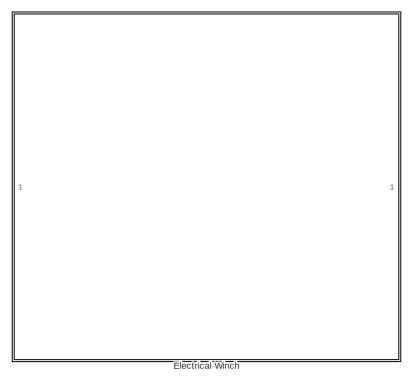
[diagram: root canvas - part 1/2, top left region]
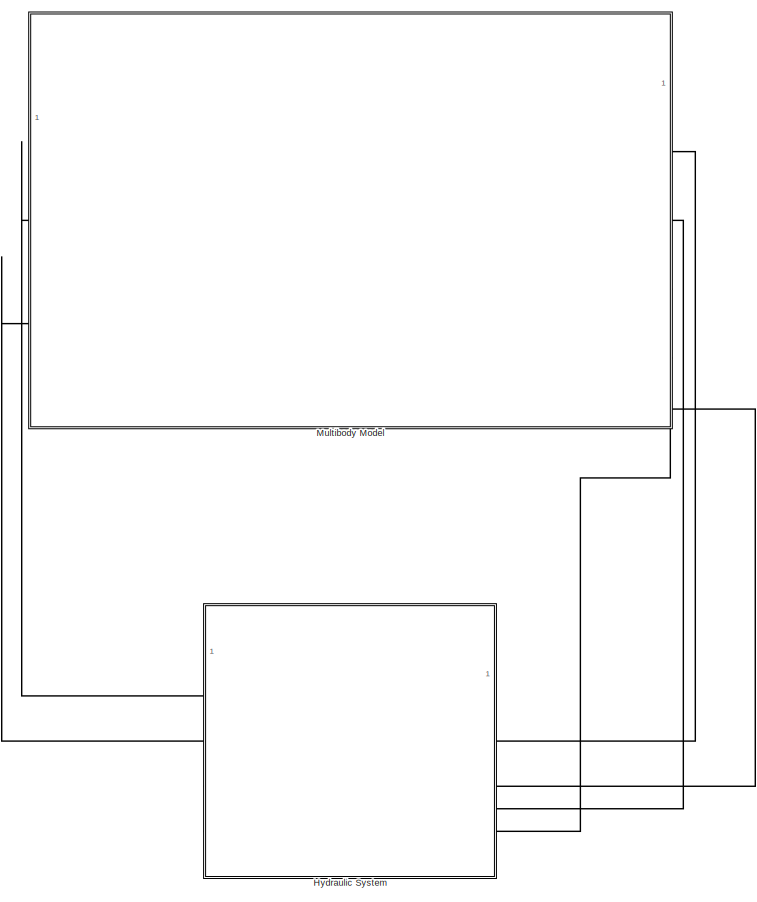
[diagram: root canvas - part 2/2, bottom center region]
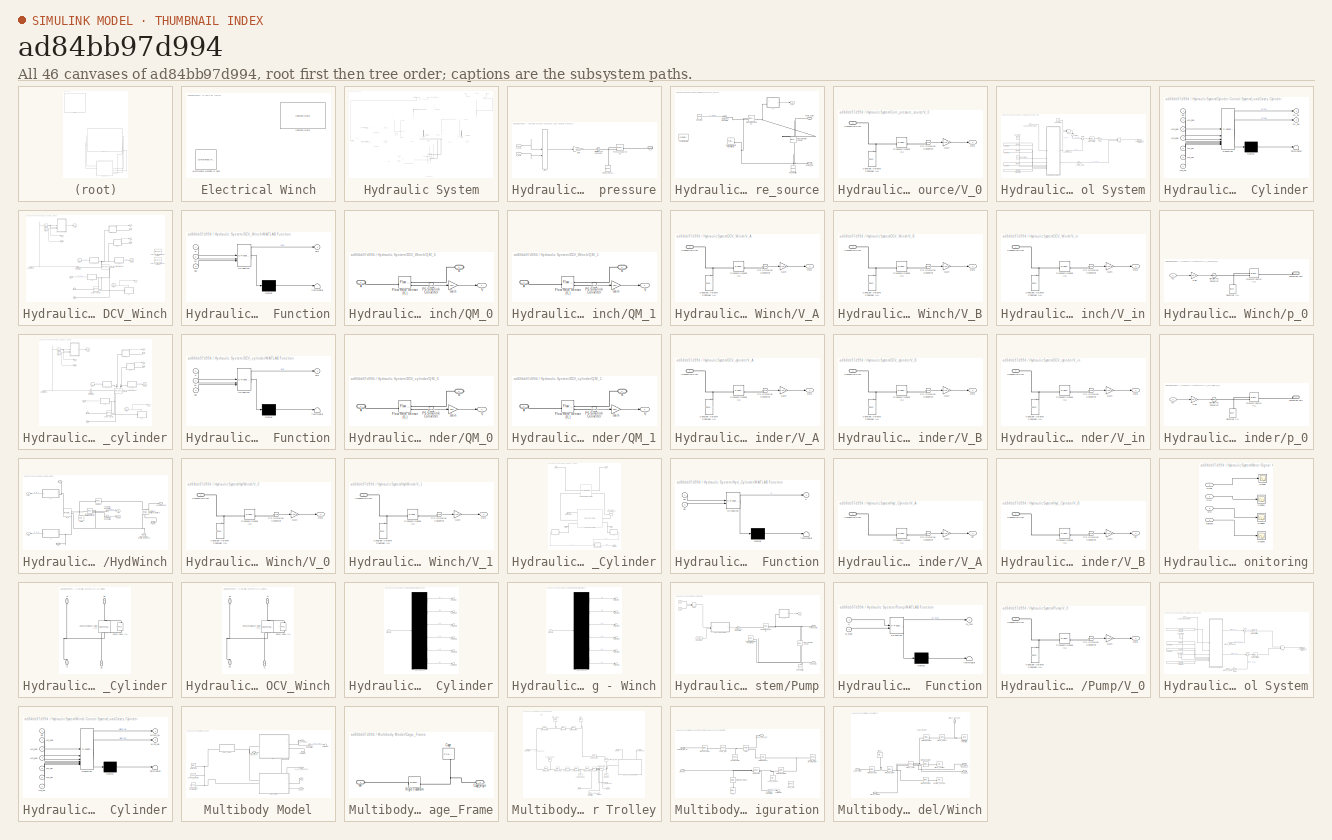
[diagram: thumbnail index - all 46 canvases of the model, root first then tree order]
MODEL slx_ad84bb97d994
KIND model
CONFIG AbsTol = auto
CONFIG EnableMultiTasking = off
CONFIG FixedStep = 0.001
CONFIG MaxStep = auto
CONFIG MinStep = auto
CONFIG RelTol = 1e-3
CONFIG SampleTimeConstraint = Unconstrained
CONFIG SolverName = VariableStepAuto
CONFIG StartTime = 0.0
CONFIG StopTime = 25
WORKSPACE source: MATLAB code (in-file)
WORKSPACE Q_max = 130
BLOCK [SubSystem] Electrical Winch
  Commented = on
BLOCK [Reference] Electrical Winch/Asynchronous Machine SI Units  REF=spsAsynchronousMachineSIUnitsLib/Asynchronous Machine
SI Units
  LibrarySourceBlock = sps_lib/Electrical Machines/Asynchronous Machine\nSI Units
  SourceBlock = spsAsynchronousMachineSIUnitsLib/Asynchronous Machine\nSI Units
  SourceType = Asynchronous Machine
BLOCK [Reference] Electrical Winch/Induction Motor  REF=autolibim/Induction Motor
  LibrarySourceBlock = autolibemachines/Induction Motor
  SourceBlock = autolibim/Induction Motor
  SourceType = Induction Motor
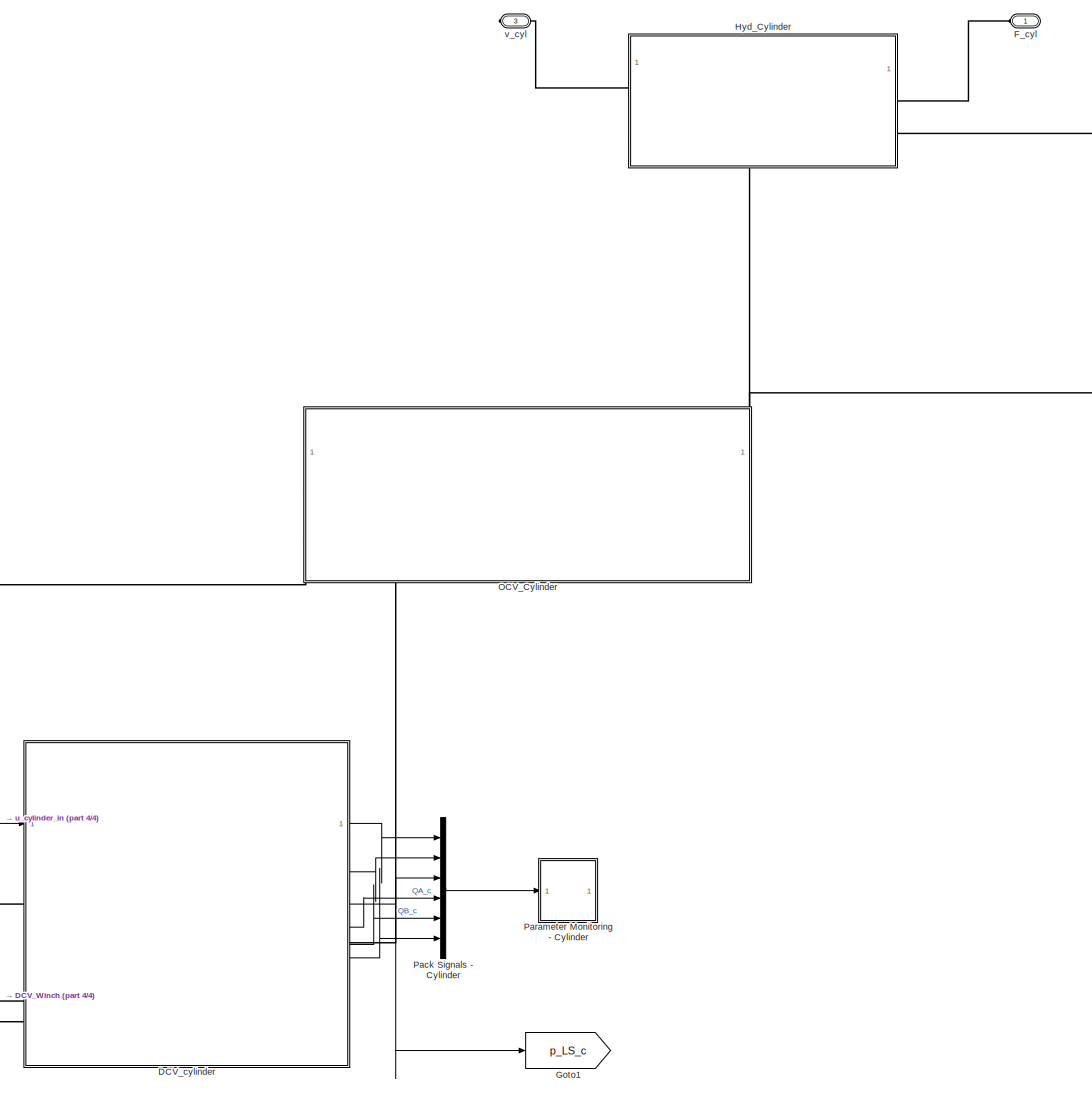
[diagram: Hydraulic System - part 1/4, top right region]
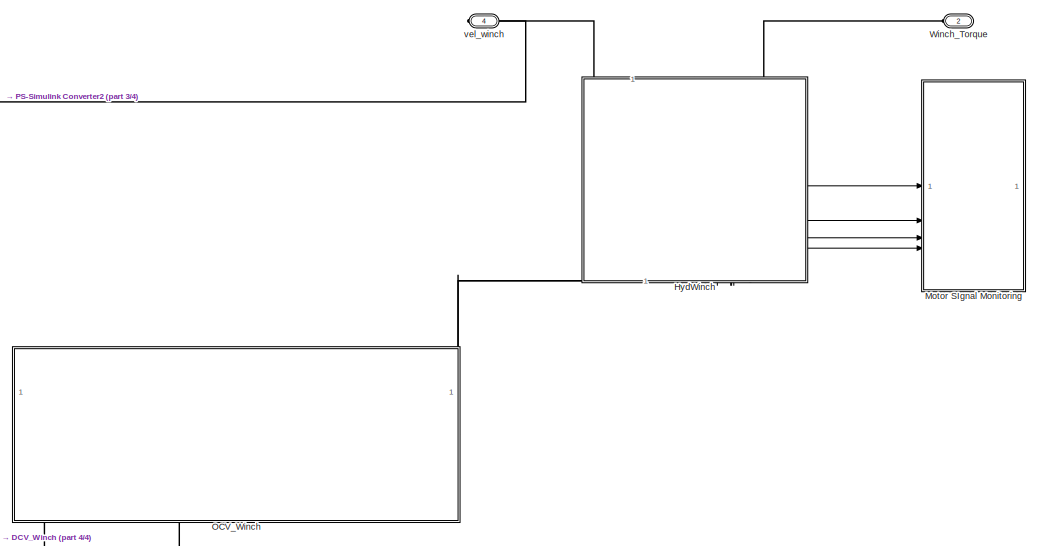
[diagram: Hydraulic System - part 2/4, top center region]
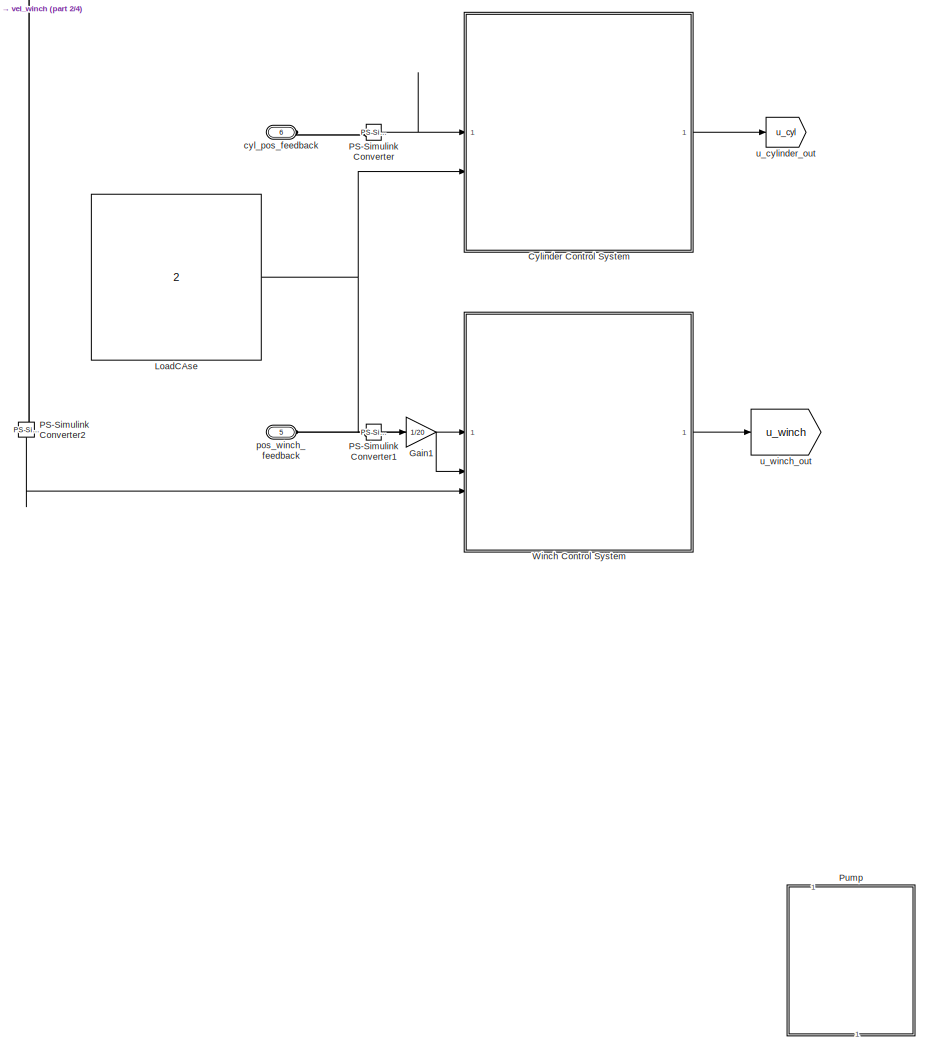
[diagram: Hydraulic System - part 3/4, middle left region]
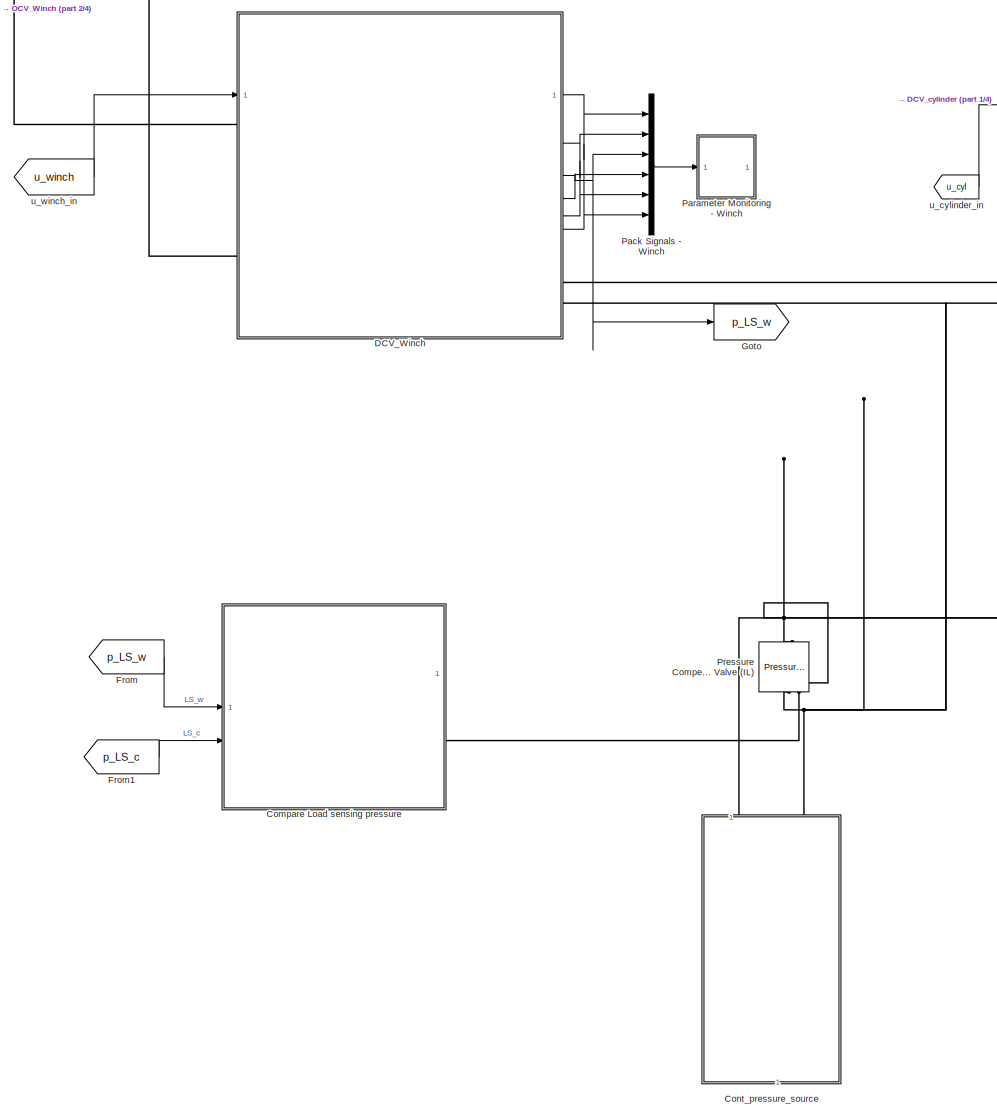
[diagram: Hydraulic System - part 4/4, bottom center region]
BLOCK [SubSystem] Hydraulic System
  PortSchema = {"entries":[{"content":{"sides":[{"content":{"connectorIds":["LConn1","LConn2"]},"type":"ConnectorPlacement.EquallySpacedRectSide","uuid":"d2f2f53f-a514-4115-95b6-c5edd4e5b59e"},{"content":{"connectorIds":["RConn1","RConn2"],"side":"RIGHT"},"type":"ConnectorPlacement.EquallySpacedRectSide","uuid":"dca80462-6e47-4adb-ad12-c00c4b76a834"},{"content":{"connectorIds":["LConn3","LConn4"],"side":"TOP"},"...<+280ch>
BLOCK [SubSystem] Hydraulic System/Compare Load sensing pressure
BLOCK [Gain] Hydraulic System/Compare Load sensing pressure/Gain
  Gain = 10^5
BLOCK [MinMax] Hydraulic System/Compare Load sensing pressure/Max
  Function = max
  Inputs = 2
BLOCK [Reference] Hydraulic System/Compare Load sensing pressure/Pressure Source (IL)  REF=fl_lib/Isothermal Liquid/Sources/Pressure Source (IL)
  SourceBlock = fl_lib/Isothermal Liquid/Sources/Pressure Source (IL)
  SourceType = Pressure Source (IL)
BLOCK [Reference] Hydraulic System/Compare Load sensing pressure/Reservoir (IL)  REF=fl_lib/Isothermal Liquid/Elements/Reservoir (IL)
  NameLocation = right
  SourceBlock = fl_lib/Isothermal Liquid/Elements/Reservoir (IL)
  SourceType = Reservoir (IL)
BLOCK [Reference] Hydraulic System/Compare Load sensing pressure/Simulink-PS Converter  REF=nesl_utility/Simulink-PS
Converter
  SourceBlock = nesl_utility/Simulink-PS\nConverter
  SourceType = Simulink-PS\nConverter
BLOCK [PMIOPort] Hydraulic System/Compare Load sensing pressure/p_0
  NameLocation = top
  Side = Right
BLOCK [Inport] Hydraulic System/Compare Load sensing pressure/p_LS0
BLOCK [Inport] Hydraulic System/Compare Load sensing pressure/p_LS1
  Port = 2
BLOCK [SubSystem] Hydraulic System/Cont_pressure_source
  NameLocation = right
BLOCK [Constant] Hydraulic System/Cont_pressure_source/Constant
  Value = 65e5
BLOCK [Reference] Hydraulic System/Cont_pressure_source/Hydraulic Fluid  REF=sh_lib/Hydraulic Utilities/Hydraulic Fluid
  SourceBlock = sh_lib/Hydraulic Utilities/Hydraulic Fluid
  SourceType = Hydraulic Fluid
BLOCK [Reference] Hydraulic System/Cont_pressure_source/Isothermal Liquid Properties (IL)  REF=fl_lib/Isothermal Liquid/Utilities/Isothermal Liquid
Properties (IL)
  SourceBlock = fl_lib/Isothermal Liquid/Utilities/Isothermal Liquid\nProperties (IL)
  SourceType = Isothermal Liquid\nProperties (IL)
BLOCK [Outport] Hydraulic System/Cont_pressure_source/P_M
BLOCK [Reference] Hydraulic System/Cont_pressure_source/Pressure Relief Valve (IL)  REF=SimscapeFluids_lib/Isothermal Liquid/Valves & Orifices/Pressure Control
Valves/Pressure Relief
Valve (IL)
  NameLocation = left
  SourceBlock = SimscapeFluids_lib/Isothermal Liquid/Valves & Orifices/Pressure Control\nValves/Pressure Relief\nValve (IL)
  SourceType = Pressure Relief\nValve (IL)
BLOCK [Reference] Hydraulic System/Cont_pressure_source/Pressure Source (IL)  REF=fl_lib/Isothermal Liquid/Sources/Pressure Source (IL)
  SourceBlock = fl_lib/Isothermal Liquid/Sources/Pressure Source (IL)
  SourceType = Pressure Source (IL)
BLOCK [PMIOPort] Hydraulic System/Cont_pressure_source/Pump_inlet
  NameLocation = top
  Port = 2
  Side = Left
BLOCK [PMIOPort] Hydraulic System/Cont_pressure_source/Pump_outlet
  NameLocation = top
  Side = Left
BLOCK [Reference] Hydraulic System/Cont_pressure_source/Reservoir (IL)  REF=fl_lib/Isothermal Liquid/Elements/Reservoir (IL)
  NameLocation = right
  SourceBlock = fl_lib/Isothermal Liquid/Elements/Reservoir (IL)
  SourceType = Reservoir (IL)
BLOCK [Reference] Hydraulic System/Cont_pressure_source/Simulink-PS Converter  REF=nesl_utility/Simulink-PS
Converter
  SourceBlock = nesl_utility/Simulink-PS\nConverter
  SourceType = Simulink-PS\nConverter
BLOCK [SubSystem] Hydraulic System/Cont_pressure_source/V_0
BLOCK [PMIOPort] Hydraulic System/Cont_pressure_source/V_0/Connection Port
  Side = Left
BLOCK [Reference] Hydraulic System/Cont_pressure_source/V_0/Constant Volume Chamber (IL)  REF=fl_lib/Isothermal Liquid/Elements/Constant Volume
Chamber (IL)
  NameLocation = right
  SourceBlock = fl_lib/Isothermal Liquid/Elements/Constant Volume\nChamber (IL)
  SourceType = Constant Volume\nChamber (IL)
BLOCK [Gain] Hydraulic System/Cont_pressure_source/V_0/Gain
  Gain = 1/10^5
BLOCK [Outport] Hydraulic System/Cont_pressure_source/V_0/Out1
BLOCK [Reference] Hydraulic System/Cont_pressure_source/V_0/PS-Simulink Converter  REF=nesl_utility/PS-Simulink
Converter
  SourceBlock = nesl_utility/PS-Simulink\nConverter
  SourceType = PS-Simulink\nConverter
BLOCK [Reference] Hydraulic System/Cont_pressure_source/V_0/Pressure Sensor (IL)  REF=fl_lib/Isothermal Liquid/Sensors/Pressure Sensor (IL)
  SourceBlock = fl_lib/Isothermal Liquid/Sensors/Pressure Sensor (IL)
  SourceType = Pressure Sensor (IL)
BLOCK [SubSystem] Hydraulic System/Cylinder Control System
BLOCK [Sum] Hydraulic System/Cylinder Control System/Add
  IconShape = rectangular
BLOCK [Sum] Hydraulic System/Cylinder Control System/Add1
  IconShape = rectangular
BLOCK [Constant] Hydraulic System/Cylinder Control System/Constant
  Value = 0.1
BLOCK [Constant] Hydraulic System/Cylinder Control System/Constant1
  Value = 0.1
BLOCK [Constant] Hydraulic System/Cylinder Control System/Constant2
  Value = -0.5
BLOCK [Outport] Hydraulic System/Cylinder Control System/ControlSignal_Cylinder
BLOCK [Gain] Hydraulic System/Cylinder Control System/FFWD_Gain
  Gain = -0.05
BLOCK [FromFile] Hydraulic System/Cylinder Control System/From File1
  FileName = .\Motion_Tasks\Task 2\cyl_pos.mat
  SampleTime = 0.01
BLOCK [FromFile] Hydraulic System/Cylinder Control System/From File2
  FileName = .\Motion_Tasks\Task 3\cyl_pos_ref.mat
  SampleTime = 0.01
BLOCK [FromFile] Hydraulic System/Cylinder Control System/From File4
  FileName = .\Motion_Tasks\Task 2\cyl_vel.mat
  SampleTime = 0.01
BLOCK [FromFile] Hydraulic System/Cylinder Control System/From File5
  FileName = .\Motion_Tasks\Task 3\cyl_vel_ref.mat
  SampleTime = 0.01
BLOCK [Gain] Hydraulic System/Cylinder Control System/Gain
BLOCK [Gain] Hydraulic System/Cylinder Control System/Gain1
  Gain = -1
  NameLocation = left
BLOCK [SubSystem] Hydraulic System/Cylinder Control System/LoadCases, Cylinder
  ErrorFcn = Stateflow.Translate.translate
  LibrarySourceBlock = simulink/User-Defined\nFunctions/MATLAB Function
  PermitHierarchicalResolution = ExplicitOnly
  SFBlockType = MATLAB Function
  TreatAsAtomicUnit = on
BLOCK [Demux] Hydraulic System/Cylinder Control System/LoadCases, Cylinder/ Demux 
  Outputs = 1
BLOCK [S-Function] Hydraulic System/Cylinder Control System/LoadCases, Cylinder/ SFunction 
  EnableBusSupport = on
  FunctionName = sf_sfun
  PortCounts = [7 3]
  SFcnIsStateOwnerBlock = off
  SFunctionDeploymentMode = off
  Tag = Stateflow S-Function 4
BLOCK [Terminator] Hydraulic System/Cylinder Control System/LoadCases, Cylinder/ Terminator 
BLOCK [Inport] Hydraulic System/Cylinder Control System/LoadCases, Cylinder/Lc1_pos
  Port = 2
BLOCK [Inport] Hydraulic System/Cylinder Control System/LoadCases, Cylinder/Lc1_vel
  Port = 5
BLOCK [Inport] Hydraulic System/Cylinder Control System/LoadCases, Cylinder/Lc2_pos
  Port = 3
BLOCK [Inport] Hydraulic System/Cylinder Control System/LoadCases, Cylinder/Lc2_vel
  Port = 6
BLOCK [Inport] Hydraulic System/Cylinder Control System/LoadCases, Cylinder/Lc3_pos
  Port = 4
BLOCK [Inport] Hydraulic System/Cylinder Control System/LoadCases, Cylinder/Lc3_vel
  Port = 7
BLOCK [Outport] Hydraulic System/Cylinder Control System/LoadCases, Cylinder/cyl_sp
BLOCK [Outport] Hydraulic System/Cylinder Control System/LoadCases, Cylinder/cyl_vel
  Port = 2
BLOCK [Inport] Hydraulic System/Cylinder Control System/LoadCases, Cylinder/sel
BLOCK [Inport] Hydraulic System/Cylinder Control System/Loadcase_select
  Port = 2
BLOCK [Reference] Hydraulic System/Cylinder Control System/PID Controller  REF=slpidlib/PID Controller
  LibrarySourceBlock = simulink/Continuous/PID Controller
  SourceBlock = slpidlib/PID Controller
  SourceType = PID 1dof
BLOCK [Sum] Hydraulic System/Cylinder Control System/Sum
  Inputs = |+-
BLOCK [Inport] Hydraulic System/Cylinder Control System/cyl_feedback
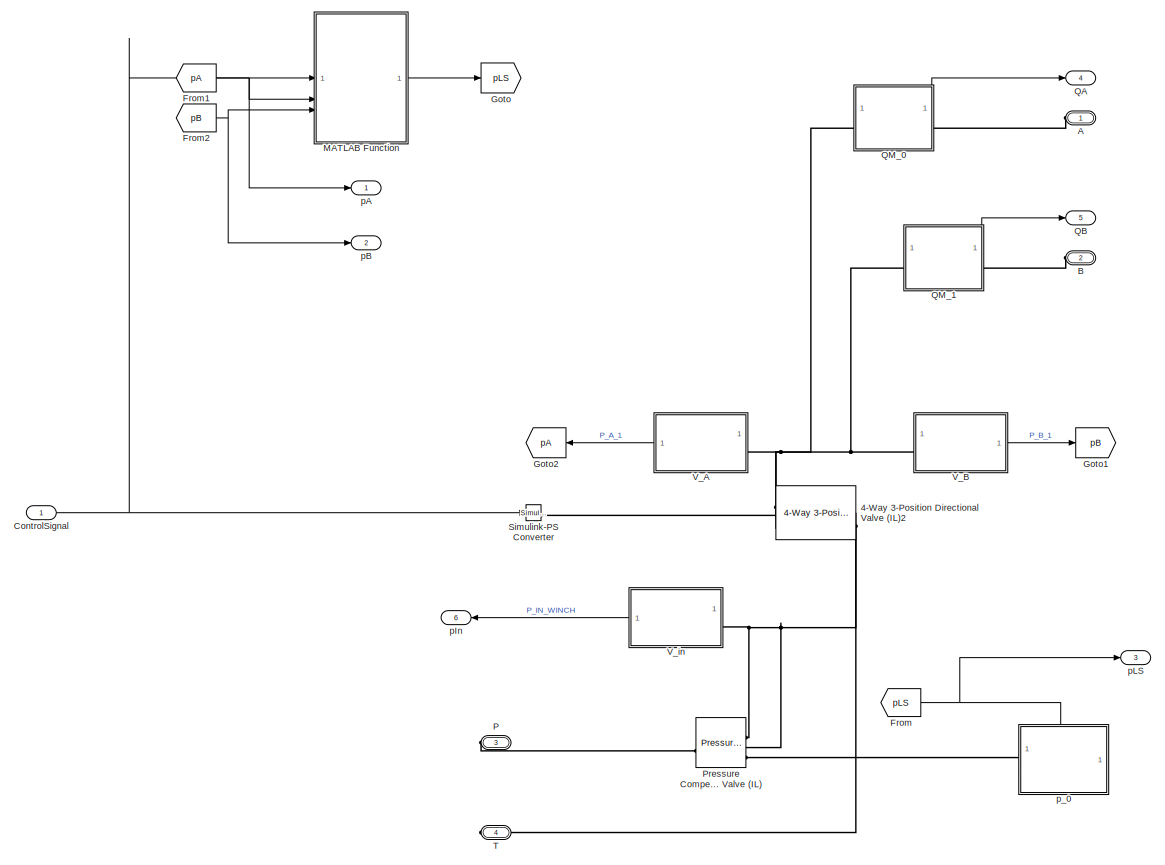
[diagram: Hydraulic System/DCV_Winch - part 1/2, most of the canvas]
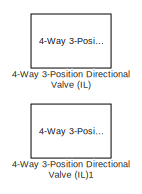
[diagram: Hydraulic System/DCV_Winch - part 2/2, middle right region]
BLOCK [SubSystem] Hydraulic System/DCV_Winch
  PortSchema = {"entries":[{"content":{"sides":[{"content":{"connectorIds":["In1"]},"type":"ConnectorPlacement.EquallySpacedRectSide","uuid":"2106b7c6-6d92-4a39-9b3d-8951ce8b04e8"},{"content":{"connectorIds":["Out1","Out2","Out3","Out4","Out5","Out6"],"side":"RIGHT"},"type":"ConnectorPlacement.EquallySpacedRectSide","uuid":"760f4e6f-1347-4e69-a63e-1f73879098bb"},{"content":{"connectorIds":["LConn1","LConn2"],"si...<+453ch>
BLOCK [Reference] Hydraulic System/DCV_Winch/4-Way 3-Position Directional Valve (IL)  REF=SimscapeFluids_lib/Isothermal Liquid/Valves & Orifices/Directional Control
Valves/4-Way 3-Position
Directional Valve
(IL)
  Commented = on
  SourceBlock = SimscapeFluids_lib/Isothermal Liquid/Valves & Orifices/Directional Control\nValves/4-Way 3-Position\nDirectional Valve\n(IL)
  SourceType = 4-Way 3-Position\nDirectional Valve\n(IL)
BLOCK [Reference] Hydraulic System/DCV_Winch/4-Way 3-Position Directional Valve (IL)1  REF=SimscapeFluids_lib/Isothermal Liquid/Valves & Orifices/Directional Control
Valves/4-Way 3-Position
Directional Valve
(IL)
  Commented = on
  SourceBlock = SimscapeFluids_lib/Isothermal Liquid/Valves & Orifices/Directional Control\nValves/4-Way 3-Position\nDirectional Valve\n(IL)
  SourceType = 4-Way 3-Position\nDirectional Valve\n(IL)
BLOCK [Reference] Hydraulic System/DCV_Winch/4-Way 3-Position Directional Valve (IL)2  REF=SimscapeFluids_lib/Isothermal Liquid/Valves & Orifices/Directional Control
Valves/4-Way 3-Position
Directional Valve
(IL)
  SourceBlock = SimscapeFluids_lib/Isothermal Liquid/Valves & Orifices/Directional Control\nValves/4-Way 3-Position\nDirectional Valve\n(IL)
  SourceType = 4-Way 3-Position\nDirectional Valve\n(IL)
BLOCK [PMIOPort] Hydraulic System/DCV_Winch/A
  Side = Left
BLOCK [PMIOPort] Hydraulic System/DCV_Winch/B
  Port = 2
  Side = Left
BLOCK [Inport] Hydraulic System/DCV_Winch/ControlSignal
BLOCK [From] Hydraulic System/DCV_Winch/From
  GotoTag = pLS
BLOCK [From] Hydraulic System/DCV_Winch/From1
  GotoTag = pA
BLOCK [From] Hydraulic System/DCV_Winch/From2
  GotoTag = pB
BLOCK [Goto] Hydraulic System/DCV_Winch/Goto
  GotoTag = pLS
BLOCK [Goto] Hydraulic System/DCV_Winch/Goto1
  GotoTag = pB
BLOCK [Goto] Hydraulic System/DCV_Winch/Goto2
  GotoTag = pA
BLOCK [SubSystem] Hydraulic System/DCV_Winch/MATLAB Function
  ErrorFcn = Stateflow.Translate.translate
  LibrarySourceBlock = simulink/User-Defined\nFunctions/MATLAB Function
  PermitHierarchicalResolution = ExplicitOnly
  SFBlockType = MATLAB Function
  TreatAsAtomicUnit = on
BLOCK [Demux] Hydraulic System/DCV_Winch/MATLAB Function/ Demux 
  Outputs = 1
BLOCK [S-Function] Hydraulic System/DCV_Winch/MATLAB Function/ SFunction 
  EnableBusSupport = on
  FunctionName = sf_sfun
  PortCounts = [3 2]
  SFcnIsStateOwnerBlock = off
  SFunctionDeploymentMode = off
  Tag = Stateflow S-Function 1
BLOCK [Terminator] Hydraulic System/DCV_Winch/MATLAB Function/ Terminator 
BLOCK [Inport] Hydraulic System/DCV_Winch/MATLAB Function/pA
  Port = 2
BLOCK [Inport] Hydraulic System/DCV_Winch/MATLAB Function/pB
  Port = 3
BLOCK [Outport] Hydraulic System/DCV_Winch/MATLAB Function/pLS
BLOCK [Inport] Hydraulic System/DCV_Winch/MATLAB Function/u
BLOCK [PMIOPort] Hydraulic System/DCV_Winch/P
  Port = 3
  Side = Right
BLOCK [Reference] Hydraulic System/DCV_Winch/Pressure Compensator Valve (IL)  REF=SimscapeFluids_lib/Isothermal Liquid/Valves & Orifices/Pressure Control
Valves/Pressure Compensator
Valve (IL)
  SourceBlock = SimscapeFluids_lib/Isothermal Liquid/Valves & Orifices/Pressure Control\nValves/Pressure Compensator\nValve (IL)
  SourceType = Pressure Compensator\nValve (IL)
BLOCK [Outport] Hydraulic System/DCV_Winch/QA
  Port = 4
BLOCK [Outport] Hydraulic System/DCV_Winch/QB
  Port = 5
BLOCK [SubSystem] Hydraulic System/DCV_Winch/QM_0
  PortSchema = {"entries":[{"content":{"sides":[{"content":{"connectorIds":["LConn1"]},"type":"ConnectorPlacement.EquallySpacedRectSide","uuid":"01703c7c-539b-4a39-97b4-ca20cf514892"},{"content":{"connectorIds":["RConn1"],"side":"RIGHT"},"type":"ConnectorPlacement.EquallySpacedRectSide","uuid":"51017cc5-2117-42de-a5e0-90b02f9996a9"},{"content":{"connectorIds":["Out1"],"side":"TOP"},"type":"ConnectorPlacement.Equ...<+251ch>  <repeated x4 — deduplicated; at blocks: QM_0, QM_1>
BLOCK [PMIOPort] Hydraulic System/DCV_Winch/QM_0/A
  Side = Left
BLOCK [PMIOPort] Hydraulic System/DCV_Winch/QM_0/B
  Port = 2
  Side = Right
BLOCK [Reference] Hydraulic System/DCV_Winch/QM_0/Flow Rate Sensor (IL)  REF=fl_lib/Isothermal Liquid/Sensors/Flow Rate Sensor
(IL)
  SourceBlock = fl_lib/Isothermal Liquid/Sensors/Flow Rate Sensor\n(IL)
  SourceType = Flow Rate Sensor\n(IL)
BLOCK [Gain] Hydraulic System/DCV_Winch/QM_0/Gain
  Gain = 6e4
BLOCK [Reference] Hydraulic System/DCV_Winch/QM_0/PS-Simulink Converter  REF=nesl_utility/PS-Simulink
Converter
  SourceBlock = nesl_utility/PS-Simulink\nConverter
  SourceType = PS-Simulink\nConverter
BLOCK [Outport] Hydraulic System/DCV_Winch/QM_0/Q
BLOCK [SubSystem] Hydraulic System/DCV_Winch/QM_1
BLOCK [PMIOPort] Hydraulic System/DCV_Winch/QM_1/A
  Side = Left
BLOCK [PMIOPort] Hydraulic System/DCV_Winch/QM_1/B
  Port = 2
  Side = Right
BLOCK [Reference] Hydraulic System/DCV_Winch/QM_1/Flow Rate Sensor (IL)  REF=fl_lib/Isothermal Liquid/Sensors/Flow Rate Sensor
(IL)
  SourceBlock = fl_lib/Isothermal Liquid/Sensors/Flow Rate Sensor\n(IL)
  SourceType = Flow Rate Sensor\n(IL)
BLOCK [Gain] Hydraulic System/DCV_Winch/QM_1/Gain
  Gain = 6e4
BLOCK [Reference] Hydraulic System/DCV_Winch/QM_1/PS-Simulink Converter  REF=nesl_utility/PS-Simulink
Converter
  SourceBlock = nesl_utility/PS-Simulink\nConverter
  SourceType = PS-Simulink\nConverter
BLOCK [Outport] Hydraulic System/DCV_Winch/QM_1/Q
BLOCK [Reference] Hydraulic System/DCV_Winch/Simulink-PS Converter  REF=nesl_utility/Simulink-PS
Converter
  SourceBlock = nesl_utility/Simulink-PS\nConverter
  SourceType = Simulink-PS\nConverter
BLOCK [PMIOPort] Hydraulic System/DCV_Winch/T
  Port = 4
  Side = Right
BLOCK [SubSystem] Hydraulic System/DCV_Winch/V_A
BLOCK [PMIOPort] Hydraulic System/DCV_Winch/V_A/Connection Port
  Side = Left
BLOCK [Reference] Hydraulic System/DCV_Winch/V_A/Constant Volume Chamber (IL)  REF=fl_lib/Isothermal Liquid/Elements/Constant Volume
Chamber (IL)
  NameLocation = right
  SourceBlock = fl_lib/Isothermal Liquid/Elements/Constant Volume\nChamber (IL)
  SourceType = Constant Volume\nChamber (IL)
BLOCK [Gain] Hydraulic System/DCV_Winch/V_A/Gain
  Gain = 1/10^5
BLOCK [Outport] Hydraulic System/DCV_Winch/V_A/Out1
BLOCK [Reference] Hydraulic System/DCV_Winch/V_A/PS-Simulink Converter  REF=nesl_utility/PS-Simulink
Converter
  SourceBlock = nesl_utility/PS-Simulink\nConverter
  SourceType = PS-Simulink\nConverter
BLOCK [Reference] Hydraulic System/DCV_Winch/V_A/Pressure Sensor (IL)  REF=fl_lib/Isothermal Liquid/Sensors/Pressure Sensor (IL)
  SourceBlock = fl_lib/Isothermal Liquid/Sensors/Pressure Sensor (IL)
  SourceType = Pressure Sensor (IL)
BLOCK [SubSystem] Hydraulic System/DCV_Winch/V_B
BLOCK [PMIOPort] Hydraulic System/DCV_Winch/V_B/Connection Port
  Side = Left
BLOCK [Reference] Hydraulic System/DCV_Winch/V_B/Constant Volume Chamber (IL)  REF=fl_lib/Isothermal Liquid/Elements/Constant Volume
Chamber (IL)
  NameLocation = right
  SourceBlock = fl_lib/Isothermal Liquid/Elements/Constant Volume\nChamber (IL)
  SourceType = Constant Volume\nChamber (IL)
BLOCK [Gain] Hydraulic System/DCV_Winch/V_B/Gain
  Gain = 1/10^5
BLOCK [Outport] Hydraulic System/DCV_Winch/V_B/Out1
BLOCK [Reference] Hydraulic System/DCV_Winch/V_B/PS-Simulink Converter  REF=nesl_utility/PS-Simulink
Converter
  SourceBlock = nesl_utility/PS-Simulink\nConverter
  SourceType = PS-Simulink\nConverter
BLOCK [Reference] Hydraulic System/DCV_Winch/V_B/Pressure Sensor (IL)  REF=fl_lib/Isothermal Liquid/Sensors/Pressure Sensor (IL)
  SourceBlock = fl_lib/Isothermal Liquid/Sensors/Pressure Sensor (IL)
  SourceType = Pressure Sensor (IL)
BLOCK [SubSystem] Hydraulic System/DCV_Winch/V_in
BLOCK [PMIOPort] Hydraulic System/DCV_Winch/V_in/Connection Port
  Side = Left
BLOCK [Reference] Hydraulic System/DCV_Winch/V_in/Constant Volume Chamber (IL)  REF=fl_lib/Isothermal Liquid/Elements/Constant Volume
Chamber (IL)
  NameLocation = right
  SourceBlock = fl_lib/Isothermal Liquid/Elements/Constant Volume\nChamber (IL)
  SourceType = Constant Volume\nChamber (IL)
BLOCK [Gain] Hydraulic System/DCV_Winch/V_in/Gain
  Gain = 1/10^5
BLOCK [Outport] Hydraulic System/DCV_Winch/V_in/Out1
BLOCK [Reference] Hydraulic System/DCV_Winch/V_in/PS-Simulink Converter  REF=nesl_utility/PS-Simulink
Converter
  SourceBlock = nesl_utility/PS-Simulink\nConverter
  SourceType = PS-Simulink\nConverter
BLOCK [Reference] Hydraulic System/DCV_Winch/V_in/Pressure Sensor (IL)  REF=fl_lib/Isothermal Liquid/Sensors/Pressure Sensor (IL)
  SourceBlock = fl_lib/Isothermal Liquid/Sensors/Pressure Sensor (IL)
  SourceType = Pressure Sensor (IL)
BLOCK [Outport] Hydraulic System/DCV_Winch/pA
BLOCK [Outport] Hydraulic System/DCV_Winch/pB
  Port = 2
BLOCK [Outport] Hydraulic System/DCV_Winch/pIn
  Port = 6
BLOCK [Outport] Hydraulic System/DCV_Winch/pLS
  Port = 3
BLOCK [SubSystem] Hydraulic System/DCV_Winch/p_0
  PortSchema = {"entries":[{"content":{"sides":[{"content":{"connectorIds":["LConn1"]},"type":"ConnectorPlacement.EquallySpacedRectSide","uuid":"c4662dc8-9dce-4e03-a503-caebb8aa604d"},{"content":{"side":"RIGHT"},"type":"ConnectorPlacement.EquallySpacedRectSide","uuid":"29be6a65-4201-4b09-abee-03d6b9c83b9e"},{"content":{"connectorIds":["In1"],"side":"TOP"},"type":"ConnectorPlacement.EquallySpacedRectSide","uuid":...<+224ch>
BLOCK [PMIOPort] Hydraulic System/DCV_Winch/p_0/Connection Port
  Side = Left
BLOCK [Gain] Hydraulic System/DCV_Winch/p_0/Gain
  Gain = 10^5
BLOCK [Inport] Hydraulic System/DCV_Winch/p_0/In1
BLOCK [Reference] Hydraulic System/DCV_Winch/p_0/Pressure Source (IL)  REF=fl_lib/Isothermal Liquid/Sources/Pressure Source (IL)
  SourceBlock = fl_lib/Isothermal Liquid/Sources/Pressure Source (IL)
  SourceType = Pressure Source (IL)
BLOCK [Reference] Hydraulic System/DCV_Winch/p_0/Reservoir (IL)  REF=fl_lib/Isothermal Liquid/Elements/Reservoir (IL)
  NameLocation = right
  SourceBlock = fl_lib/Isothermal Liquid/Elements/Reservoir (IL)
  SourceType = Reservoir (IL)
BLOCK [Reference] Hydraulic System/DCV_Winch/p_0/Simulink-PS Converter  REF=nesl_utility/Simulink-PS
Converter
  SourceBlock = nesl_utility/Simulink-PS\nConverter
  SourceType = Simulink-PS\nConverter
BLOCK [SubSystem] Hydraulic System/DCV_cylinder
  PortSchema = {"entries":[{"content":{"sides":[{"content":{"connectorIds":["In1"]},"type":"ConnectorPlacement.EquallySpacedRectSide","uuid":"2106b7c6-6d92-4a39-9b3d-8951ce8b04e8"},{"content":{"connectorIds":["Out1","Out2","Out3","Out4","Out5","Out6"],"side":"RIGHT"},"type":"ConnectorPlacement.EquallySpacedRectSide","uuid":"760f4e6f-1347-4e69-a63e-1f73879098bb"},{"content":{"connectorIds":["LConn1","LConn2"],"si...<+453ch>
BLOCK [Reference] Hydraulic System/DCV_cylinder/4-Way 3-Position Directional Valve (IL)  REF=SimscapeFluids_lib/Isothermal Liquid/Valves & Orifices/Directional Control
Valves/4-Way 3-Position
Directional Valve
(IL)
  SourceBlock = SimscapeFluids_lib/Isothermal Liquid/Valves & Orifices/Directional Control\nValves/4-Way 3-Position\nDirectional Valve\n(IL)
  SourceType = 4-Way 3-Position\nDirectional Valve\n(IL)
BLOCK [PMIOPort] Hydraulic System/DCV_cylinder/A
  Port = 2
  Side = Left
BLOCK [PMIOPort] Hydraulic System/DCV_cylinder/B
  Side = Left
BLOCK [Inport] Hydraulic System/DCV_cylinder/ControlSignal
BLOCK [From] Hydraulic System/DCV_cylinder/From
  GotoTag = pLS
BLOCK [From] Hydraulic System/DCV_cylinder/From1
  GotoTag = pA
BLOCK [From] Hydraulic System/DCV_cylinder/From2
  GotoTag = pB
BLOCK [Goto] Hydraulic System/DCV_cylinder/Goto
  GotoTag = pLS
BLOCK [Goto] Hydraulic System/DCV_cylinder/Goto1
  GotoTag = pB
BLOCK [Goto] Hydraulic System/DCV_cylinder/Goto2
  GotoTag = pA
BLOCK [SubSystem] Hydraulic System/DCV_cylinder/MATLAB Function
  ErrorFcn = Stateflow.Translate.translate
  LibrarySourceBlock = simulink/User-Defined\nFunctions/MATLAB Function
  PermitHierarchicalResolution = ExplicitOnly
  SFBlockType = MATLAB Function
  TreatAsAtomicUnit = on
BLOCK [Demux] Hydraulic System/DCV_cylinder/MATLAB Function/ Demux 
  Outputs = 1
BLOCK [S-Function] Hydraulic System/DCV_cylinder/MATLAB Function/ SFunction 
  EnableBusSupport = on
  FunctionName = sf_sfun
  PortCounts = [3 2]
  SFcnIsStateOwnerBlock = off
  SFunctionDeploymentMode = off
  Tag = Stateflow S-Function 2
BLOCK [Terminator] Hydraulic System/DCV_cylinder/MATLAB Function/ Terminator 
BLOCK [Inport] Hydraulic System/DCV_cylinder/MATLAB Function/pA
  Port = 2
BLOCK [Inport] Hydraulic System/DCV_cylinder/MATLAB Function/pB
  Port = 3
BLOCK [Outport] Hydraulic System/DCV_cylinder/MATLAB Function/pLS
BLOCK [Inport] Hydraulic System/DCV_cylinder/MATLAB Function/u
BLOCK [PMIOPort] Hydraulic System/DCV_cylinder/P
  Port = 3
  Side = Right
BLOCK [Reference] Hydraulic System/DCV_cylinder/Pressure Compensator Valve (IL)  REF=SimscapeFluids_lib/Isothermal Liquid/Valves & Orifices/Pressure Control
Valves/Pressure Compensator
Valve (IL)
  SourceBlock = SimscapeFluids_lib/Isothermal Liquid/Valves & Orifices/Pressure Control\nValves/Pressure Compensator\nValve (IL)
  SourceType = Pressure Compensator\nValve (IL)
BLOCK [Outport] Hydraulic System/DCV_cylinder/QA
  Port = 4
BLOCK [Outport] Hydraulic System/DCV_cylinder/QB
  Port = 5
BLOCK [SubSystem] Hydraulic System/DCV_cylinder/QM_0
BLOCK [PMIOPort] Hydraulic System/DCV_cylinder/QM_0/A
  Side = Left
BLOCK [PMIOPort] Hydraulic System/DCV_cylinder/QM_0/B
  Port = 2
  Side = Right
BLOCK [Reference] Hydraulic System/DCV_cylinder/QM_0/Flow Rate Sensor (IL)  REF=fl_lib/Isothermal Liquid/Sensors/Flow Rate Sensor
(IL)
  SourceBlock = fl_lib/Isothermal Liquid/Sensors/Flow Rate Sensor\n(IL)
  SourceType = Flow Rate Sensor\n(IL)
BLOCK [Gain] Hydraulic System/DCV_cylinder/QM_0/Gain
  Gain = 6e4
BLOCK [Reference] Hydraulic System/DCV_cylinder/QM_0/PS-Simulink Converter  REF=nesl_utility/PS-Simulink
Converter
  SourceBlock = nesl_utility/PS-Simulink\nConverter
  SourceType = PS-Simulink\nConverter
BLOCK [Outport] Hydraulic System/DCV_cylinder/QM_0/Q
BLOCK [SubSystem] Hydraulic System/DCV_cylinder/QM_1
BLOCK [PMIOPort] Hydraulic System/DCV_cylinder/QM_1/A
  Side = Left
BLOCK [PMIOPort] Hydraulic System/DCV_cylinder/QM_1/B
  Port = 2
  Side = Right
BLOCK [Reference] Hydraulic System/DCV_cylinder/QM_1/Flow Rate Sensor (IL)  REF=fl_lib/Isothermal Liquid/Sensors/Flow Rate Sensor
(IL)
  SourceBlock = fl_lib/Isothermal Liquid/Sensors/Flow Rate Sensor\n(IL)
  SourceType = Flow Rate Sensor\n(IL)
BLOCK [Gain] Hydraulic System/DCV_cylinder/QM_1/Gain
  Gain = 6e4
BLOCK [Reference] Hydraulic System/DCV_cylinder/QM_1/PS-Simulink Converter  REF=nesl_utility/PS-Simulink
Converter
  SourceBlock = nesl_utility/PS-Simulink\nConverter
  SourceType = PS-Simulink\nConverter
BLOCK [Outport] Hydraulic System/DCV_cylinder/QM_1/Q
BLOCK [Reference] Hydraulic System/DCV_cylinder/Simulink-PS Converter  REF=nesl_utility/Simulink-PS
Converter
  SourceBlock = nesl_utility/Simulink-PS\nConverter
  SourceType = Simulink-PS\nConverter
BLOCK [PMIOPort] Hydraulic System/DCV_cylinder/T
  Port = 4
  Side = Right
BLOCK [SubSystem] Hydraulic System/DCV_cylinder/V_A
BLOCK [PMIOPort] Hydraulic System/DCV_cylinder/V_A/Connection Port
  Side = Left
BLOCK [Reference] Hydraulic System/DCV_cylinder/V_A/Constant Volume Chamber (IL)  REF=fl_lib/Isothermal Liquid/Elements/Constant Volume
Chamber (IL)
  NameLocation = right
  SourceBlock = fl_lib/Isothermal Liquid/Elements/Constant Volume\nChamber (IL)
  SourceType = Constant Volume\nChamber (IL)
BLOCK [Gain] Hydraulic System/DCV_cylinder/V_A/Gain
  Gain = 1/10^5
BLOCK [Outport] Hydraulic System/DCV_cylinder/V_A/Out1
BLOCK [Reference] Hydraulic System/DCV_cylinder/V_A/PS-Simulink Converter  REF=nesl_utility/PS-Simulink
Converter
  SourceBlock = nesl_utility/PS-Simulink\nConverter
  SourceType = PS-Simulink\nConverter
BLOCK [Reference] Hydraulic System/DCV_cylinder/V_A/Pressure Sensor (IL)  REF=fl_lib/Isothermal Liquid/Sensors/Pressure Sensor (IL)
  SourceBlock = fl_lib/Isothermal Liquid/Sensors/Pressure Sensor (IL)
  SourceType = Pressure Sensor (IL)
BLOCK [SubSystem] Hydraulic System/DCV_cylinder/V_B
BLOCK [PMIOPort] Hydraulic System/DCV_cylinder/V_B/Connection Port
  Side = Left
BLOCK [Reference] Hydraulic System/DCV_cylinder/V_B/Constant Volume Chamber (IL)  REF=fl_lib/Isothermal Liquid/Elements/Constant Volume
Chamber (IL)
  NameLocation = right
  SourceBlock = fl_lib/Isothermal Liquid/Elements/Constant Volume\nChamber (IL)
  SourceType = Constant Volume\nChamber (IL)
BLOCK [Gain] Hydraulic System/DCV_cylinder/V_B/Gain
  Gain = 1/10^5
BLOCK [Outport] Hydraulic System/DCV_cylinder/V_B/Out1
BLOCK [Reference] Hydraulic System/DCV_cylinder/V_B/PS-Simulink Converter  REF=nesl_utility/PS-Simulink
Converter
  SourceBlock = nesl_utility/PS-Simulink\nConverter
  SourceType = PS-Simulink\nConverter
BLOCK [Reference] Hydraulic System/DCV_cylinder/V_B/Pressure Sensor (IL)  REF=fl_lib/Isothermal Liquid/Sensors/Pressure Sensor (IL)
  SourceBlock = fl_lib/Isothermal Liquid/Sensors/Pressure Sensor (IL)
  SourceType = Pressure Sensor (IL)
BLOCK [SubSystem] Hydraulic System/DCV_cylinder/V_in
BLOCK [PMIOPort] Hydraulic System/DCV_cylinder/V_in/Connection Port
  Side = Left
BLOCK [Reference] Hydraulic System/DCV_cylinder/V_in/Constant Volume Chamber (IL)  REF=fl_lib/Isothermal Liquid/Elements/Constant Volume
Chamber (IL)
  NameLocation = right
  SourceBlock = fl_lib/Isothermal Liquid/Elements/Constant Volume\nChamber (IL)
  SourceType = Constant Volume\nChamber (IL)
BLOCK [Gain] Hydraulic System/DCV_cylinder/V_in/Gain
  Gain = 1/10^5
BLOCK [Outport] Hydraulic System/DCV_cylinder/V_in/Out1
BLOCK [Reference] Hydraulic System/DCV_cylinder/V_in/PS-Simulink Converter  REF=nesl_utility/PS-Simulink
Converter
  SourceBlock = nesl_utility/PS-Simulink\nConverter
  SourceType = PS-Simulink\nConverter
BLOCK [Reference] Hydraulic System/DCV_cylinder/V_in/Pressure Sensor (IL)  REF=fl_lib/Isothermal Liquid/Sensors/Pressure Sensor (IL)
  SourceBlock = fl_lib/Isothermal Liquid/Sensors/Pressure Sensor (IL)
  SourceType = Pressure Sensor (IL)
BLOCK [Outport] Hydraulic System/DCV_cylinder/pA
BLOCK [Outport] Hydraulic System/DCV_cylinder/pB
  Port = 2
BLOCK [Outport] Hydraulic System/DCV_cylinder/pIn
  Port = 6
BLOCK [Outport] Hydraulic System/DCV_cylinder/pLS
  Port = 3
BLOCK [SubSystem] Hydraulic System/DCV_cylinder/p_0
  PortSchema = {"entries":[{"content":{"sides":[{"content":{"connectorIds":["LConn1"]},"type":"ConnectorPlacement.EquallySpacedRectSide","uuid":"c4662dc8-9dce-4e03-a503-caebb8aa604d"},{"content":{"side":"RIGHT"},"type":"ConnectorPlacement.EquallySpacedRectSide","uuid":"29be6a65-4201-4b09-abee-03d6b9c83b9e"},{"content":{"connectorIds":["In1"],"side":"TOP"},"type":"ConnectorPlacement.EquallySpacedRectSide","uuid":...<+224ch>
BLOCK [PMIOPort] Hydraulic System/DCV_cylinder/p_0/Connection Port
  Side = Left
BLOCK [Gain] Hydraulic System/DCV_cylinder/p_0/Gain
  Gain = 10^5
BLOCK [Inport] Hydraulic System/DCV_cylinder/p_0/In1
BLOCK [Reference] Hydraulic System/DCV_cylinder/p_0/Pressure Source (IL)  REF=fl_lib/Isothermal Liquid/Sources/Pressure Source (IL)
  SourceBlock = fl_lib/Isothermal Liquid/Sources/Pressure Source (IL)
  SourceType = Pressure Source (IL)
BLOCK [Reference] Hydraulic System/DCV_cylinder/p_0/Reservoir (IL)  REF=fl_lib/Isothermal Liquid/Elements/Reservoir (IL)
  NameLocation = right
  SourceBlock = fl_lib/Isothermal Liquid/Elements/Reservoir (IL)
  SourceType = Reservoir (IL)
BLOCK [Reference] Hydraulic System/DCV_cylinder/p_0/Simulink-PS Converter  REF=nesl_utility/Simulink-PS
Converter
  SourceBlock = nesl_utility/Simulink-PS\nConverter
  SourceType = Simulink-PS\nConverter
BLOCK [PMIOPort] Hydraulic System/F_cyl
  NameLocation = top
  Side = Left
BLOCK [From] Hydraulic System/From
  GotoTag = p_LS_w
BLOCK [From] Hydraulic System/From1
  GotoTag = p_LS_c
BLOCK [Gain] Hydraulic System/Gain1
  Gain = 1/20
BLOCK [Goto] Hydraulic System/Goto
  GotoTag = p_LS_w
BLOCK [Goto] Hydraulic System/Goto1
  GotoTag = p_LS_c
BLOCK [SubSystem] Hydraulic System/HydWinch
  NameLocation = left
  PortSchema = {"entries":[{"content":{"sides":[{"content":{"connectorIds":["LConn1","LConn2"]},"type":"ConnectorPlacement.EquallySpacedRectSide","uuid":"906ae067-e0ac-44f3-85e9-f66cf5a5ab3e"},{"content":{"side":"RIGHT"},"type":"ConnectorPlacement.EquallySpacedRectSide","uuid":"3007c18a-d2d4-4870-bb2a-9b75b980c61e"},{"content":{"connectorIds":["Out1","Out2","Out3","Out4"],"side":"TOP"},"type":"ConnectorPlacement...<+416ch>
BLOCK [PMIOPort] Hydraulic System/HydWinch/A
  Port = 3
  Side = Right
BLOCK [PMIOPort] Hydraulic System/HydWinch/AngularSpeed
  Port = 2
  Side = Left
BLOCK [PMIOPort] Hydraulic System/HydWinch/B
  Port = 4
  Side = Right
BLOCK [Reference] Hydraulic System/HydWinch/Gear Box  REF=fl_lib/Mechanical/Mechanisms/Gear Box
  SourceBlock = fl_lib/Mechanical/Mechanisms/Gear Box
  SourceType = Gear Box
BLOCK [Reference] Hydraulic System/HydWinch/Ideal Rotational Motion Sensor  REF=fl_lib/Mechanical/Mechanical Sensors/Ideal Rotational
Motion Sensor
  SourceBlock = fl_lib/Mechanical/Mechanical Sensors/Ideal Rotational\nMotion Sensor
  SourceType = Ideal Rotational\nMotion Sensor
BLOCK [Reference] Hydraulic System/HydWinch/Inertia  REF=fl_lib/Mechanical/Rotational Elements/Inertia
  NameLocation = right
  SourceBlock = fl_lib/Mechanical/Rotational Elements/Inertia
  SourceType = Inertia
BLOCK [Reference] Hydraulic System/HydWinch/M_0  REF=SimscapeFluids_lib/Isothermal Liquid/Pumps & Motors/Fixed-Displacement
Motor (IL)
  SourceBlock = SimscapeFluids_lib/Isothermal Liquid/Pumps & Motors/Fixed-Displacement\nMotor (IL)
  SourceType = Fixed-Displacement\nMotor (IL)
BLOCK [Reference] Hydraulic System/HydWinch/Mechanical Rotational Reference  REF=fl_lib/Mechanical/Rotational Elements/Mechanical
Rotational Reference
  NameLocation = right
  SourceBlock = fl_lib/Mechanical/Rotational Elements/Mechanical\nRotational Reference
  SourceType = Mechanical\nRotational Reference
BLOCK [Outport] Hydraulic System/HydWinch/PMA
  Port = 2
BLOCK [Outport] Hydraulic System/HydWinch/PMB
BLOCK [Reference] Hydraulic System/HydWinch/PS-Simulink Converter  REF=nesl_utility/PS-Simulink
Converter
  SourceBlock = nesl_utility/PS-Simulink\nConverter
  SourceType = PS-Simulink\nConverter
BLOCK [Reference] Hydraulic System/HydWinch/PS-Simulink Converter1  REF=nesl_utility/PS-Simulink
Converter
  SourceBlock = nesl_utility/PS-Simulink\nConverter
  SourceType = PS-Simulink\nConverter
BLOCK [Reference] Hydraulic System/HydWinch/Rotational Multibody Interface  REF=fl_lib/Mechanical/Multibody Interfaces/Rotational Multibody
Interface
  NameLocation = left
  SourceBlock = fl_lib/Mechanical/Multibody Interfaces/Rotational Multibody\nInterface
  SourceType = Rotational Multibody\nInterface
BLOCK [PMIOPort] Hydraulic System/HydWinch/Torque
  Side = Left
BLOCK [SubSystem] Hydraulic System/HydWinch/V_0
BLOCK [PMIOPort] Hydraulic System/HydWinch/V_0/Connection Port
  Side = Left
BLOCK [Reference] Hydraulic System/HydWinch/V_0/Constant Volume Chamber (IL)  REF=fl_lib/Isothermal Liquid/Elements/Constant Volume
Chamber (IL)
  NameLocation = right
  SourceBlock = fl_lib/Isothermal Liquid/Elements/Constant Volume\nChamber (IL)
  SourceType = Constant Volume\nChamber (IL)
BLOCK [Gain] Hydraulic System/HydWinch/V_0/Gain
  Gain = 1/10^5
BLOCK [Outport] Hydraulic System/HydWinch/V_0/Out1
BLOCK [Reference] Hydraulic System/HydWinch/V_0/PS-Simulink Converter  REF=nesl_utility/PS-Simulink
Converter
  SourceBlock = nesl_utility/PS-Simulink\nConverter
  SourceType = PS-Simulink\nConverter
BLOCK [Reference] Hydraulic System/HydWinch/V_0/Pressure Sensor (IL)  REF=fl_lib/Isothermal Liquid/Sensors/Pressure Sensor (IL)
  SourceBlock = fl_lib/Isothermal Liquid/Sensors/Pressure Sensor (IL)
  SourceType = Pressure Sensor (IL)
BLOCK [SubSystem] Hydraulic System/HydWinch/V_1
BLOCK [PMIOPort] Hydraulic System/HydWinch/V_1/Connection Port
  Side = Left
BLOCK [Reference] Hydraulic System/HydWinch/V_1/Constant Volume Chamber (IL)  REF=fl_lib/Isothermal Liquid/Elements/Constant Volume
Chamber (IL)
  NameLocation = right
  SourceBlock = fl_lib/Isothermal Liquid/Elements/Constant Volume\nChamber (IL)
  SourceType = Constant Volume\nChamber (IL)
BLOCK [Gain] Hydraulic System/HydWinch/V_1/Gain
  Gain = 1/10^5
BLOCK [Outport] Hydraulic System/HydWinch/V_1/Out1
BLOCK [Reference] Hydraulic System/HydWinch/V_1/PS-Simulink Converter  REF=nesl_utility/PS-Simulink
Converter
  SourceBlock = nesl_utility/PS-Simulink\nConverter
  SourceType = PS-Simulink\nConverter
BLOCK [Reference] Hydraulic System/HydWinch/V_1/Pressure Sensor (IL)  REF=fl_lib/Isothermal Liquid/Sensors/Pressure Sensor (IL)
  SourceBlock = fl_lib/Isothermal Liquid/Sensors/Pressure Sensor (IL)
  SourceType = Pressure Sensor (IL)
BLOCK [Outport] Hydraulic System/HydWinch/thetaM
  Port = 4
BLOCK [Outport] Hydraulic System/HydWinch/wM
  Port = 3
BLOCK [SubSystem] Hydraulic System/Hyd_Cylinder
  NameLocation = top
BLOCK [PMIOPort] Hydraulic System/Hyd_Cylinder/A
  NameLocation = top
  Port = 5
  Side = Left
BLOCK [PMIOPort] Hydraulic System/Hyd_Cylinder/B
  NameLocation = top
  Port = 4
  Side = Right
BLOCK [PMIOPort] Hydraulic System/Hyd_Cylinder/Current_cyl_displacement
  Port = 3
  Side = Right
BLOCK [Reference] Hydraulic System/Hyd_Cylinder/Double-Acting Actuator (IL)  REF=SimscapeFluids_lib/Isothermal Liquid/Actuators/Double-Acting
Actuator (IL)
  SourceBlock = SimscapeFluids_lib/Isothermal Liquid/Actuators/Double-Acting\nActuator (IL)
  SourceType = Double-Acting\nActuator (IL)
BLOCK [PMIOPort] Hydraulic System/Hyd_Cylinder/F_cyl
  Port = 2
  Side = Left
BLOCK [SubSystem] Hydraulic System/Hyd_Cylinder/MATLAB Function
  ErrorFcn = Stateflow.Translate.translate
  PermitHierarchicalResolution = ExplicitOnly
  SFBlockType = MATLAB Function
  TreatAsAtomicUnit = on
BLOCK [Demux] Hydraulic System/Hyd_Cylinder/MATLAB Function/ Demux 
  Outputs = 1
BLOCK [S-Function] Hydraulic System/Hyd_Cylinder/MATLAB Function/ SFunction 
  EnableBusSupport = on
  FunctionName = sf_sfun
  PortCounts = [2 2]
  SFcnIsStateOwnerBlock = off
  SFunctionDeploymentMode = off
  Tag = Stateflow S-Function 6
BLOCK [Terminator] Hydraulic System/Hyd_Cylinder/MATLAB Function/ Terminator 
BLOCK [Outport] Hydraulic System/Hyd_Cylinder/MATLAB Function/F
BLOCK [Inport] Hydraulic System/Hyd_Cylinder/MATLAB Function/pa
BLOCK [Inport] Hydraulic System/Hyd_Cylinder/MATLAB Function/pb
  Port = 2
BLOCK [Reference] Hydraulic System/Hyd_Cylinder/Mechanical Translational Reference  REF=fl_lib/Mechanical/Translational
Elements/Mechanical
Translational
Reference
  NameLocation = top
  SourceBlock = fl_lib/Mechanical/Translational\nElements/Mechanical\nTranslational\nReference
  SourceType = Mechanical\nTranslational\nReference
BLOCK [Terminator] Hydraulic System/Hyd_Cylinder/Terminator
BLOCK [Reference] Hydraulic System/Hyd_Cylinder/Translational Multibody Interface  REF=fl_lib/Mechanical/Multibody Interfaces/Translational
Multibody Interface
  SourceBlock = fl_lib/Mechanical/Multibody Interfaces/Translational\nMultibody Interface
  SourceType = Translational\nMultibody Interface
BLOCK [SubSystem] Hydraulic System/Hyd_Cylinder/V_A
BLOCK [PMIOPort] Hydraulic System/Hyd_Cylinder/V_A/Connection Port
  Side = Left
BLOCK [Gain] Hydraulic System/Hyd_Cylinder/V_A/Gain
  Gain = 1/10^5
BLOCK [Reference] Hydraulic System/Hyd_Cylinder/V_A/PS-Simulink Converter  REF=nesl_utility/PS-Simulink
Converter
  SourceBlock = nesl_utility/PS-Simulink\nConverter
  SourceType = PS-Simulink\nConverter
BLOCK [Reference] Hydraulic System/Hyd_Cylinder/V_A/Pressure Sensor (IL)  REF=fl_lib/Isothermal Liquid/Sensors/Pressure Sensor (IL)
  SourceBlock = fl_lib/Isothermal Liquid/Sensors/Pressure Sensor (IL)
  SourceType = Pressure Sensor (IL)
BLOCK [Outport] Hydraulic System/Hyd_Cylinder/V_A/pb
BLOCK [SubSystem] Hydraulic System/Hyd_Cylinder/V_B
BLOCK [PMIOPort] Hydraulic System/Hyd_Cylinder/V_B/Connection Port
  Side = Left
BLOCK [Gain] Hydraulic System/Hyd_Cylinder/V_B/Gain
  Gain = 1/10^5
BLOCK [Reference] Hydraulic System/Hyd_Cylinder/V_B/PS-Simulink Converter  REF=nesl_utility/PS-Simulink
Converter
  SourceBlock = nesl_utility/PS-Simulink\nConverter
  SourceType = PS-Simulink\nConverter
BLOCK [Reference] Hydraulic System/Hyd_Cylinder/V_B/Pressure Sensor (IL)  REF=fl_lib/Isothermal Liquid/Sensors/Pressure Sensor (IL)
  SourceBlock = fl_lib/Isothermal Liquid/Sensors/Pressure Sensor (IL)
  SourceType = Pressure Sensor (IL)
BLOCK [Outport] Hydraulic System/Hyd_Cylinder/V_B/pa
BLOCK [PMIOPort] Hydraulic System/Hyd_Cylinder/v_cyl
  Side = Right
BLOCK [Constant] Hydraulic System/LoadCAse
  Value = 2
BLOCK [SubSystem] Hydraulic System/Motor SIgnal Monitoring
BLOCK [Inport] Hydraulic System/Motor SIgnal Monitoring/PMA
  Port = 2
BLOCK [Inport] Hydraulic System/Motor SIgnal Monitoring/PMB
BLOCK [Scope] Hydraulic System/Motor SIgnal Monitoring/Scope
  Floating = off
  NumInputPorts = 1
  ScopeSpecificationString = Simulink.scopes.TimeScopeBlockCfg('CurrentConfiguration', extmgr.ConfigurationSet(extmgr.Configuration('Core','General UI',true),extmgr.Configuration('Core','Source UI',true),extmgr.Configuration('Sources','WiredSimulink',true,'DataLoggingVariableName','ScopeData6'),extmgr.Configuration('Visuals','Time Domain',true,'SerializedDisplays',{struct('MinYLimReal','-8.81045','MaxYLimReal','72.50227','YLa...<+1366ch>
BLOCK [Scope] Hydraulic System/Motor SIgnal Monitoring/Scope1
  Floating = off
  NumInputPorts = 1
  ScopeSpecificationString = Simulink.scopes.TimeScopeBlockCfg('CurrentConfiguration', extmgr.ConfigurationSet(extmgr.Configuration('Core','General UI',true),extmgr.Configuration('Core','Source UI',true),extmgr.Configuration('Sources','WiredSimulink',true,'DataLoggingVariableName','ScopeData7'),extmgr.Configuration('Visuals','Time Domain',true,'SerializedDisplays',{struct('MinYLimReal','-14.2459','MaxYLimReal','119.84871','YL...<+1370ch>
BLOCK [Scope] Hydraulic System/Motor SIgnal Monitoring/Scope2
  Floating = off
  NumInputPorts = 1
  ScopeSpecificationString = Simulink.scopes.TimeScopeBlockCfg('CurrentConfiguration', extmgr.ConfigurationSet(extmgr.Configuration('Core','General UI',true),extmgr.Configuration('Core','Source UI',true),extmgr.Configuration('Sources','WiredSimulink',true,'DataLoggingVariableName','ScopeData8'),extmgr.Configuration('Visuals','Time Domain',true,'SerializedDisplays',{struct('MinYLimReal','-84.44687','MaxYLimReal','104.47905','Y...<+1371ch>
BLOCK [Scope] Hydraulic System/Motor SIgnal Monitoring/Scope3
  Floating = off
  NumInputPorts = 1
  ScopeSpecificationString = Simulink.scopes.TimeScopeBlockCfg('CurrentConfiguration', extmgr.ConfigurationSet(extmgr.Configuration('Core','General UI',true),extmgr.Configuration('Core','Source UI',true),extmgr.Configuration('Sources','WiredSimulink',true,'DataLoggingVariableName','ScopeData9'),extmgr.Configuration('Visuals','Time Domain',true,'SerializedDisplays',{struct('MinYLimReal','-10.37444','MaxYLimReal','37.94042','YL...<+1371ch>
BLOCK [Inport] Hydraulic System/Motor SIgnal Monitoring/thetaM
  Port = 4
BLOCK [Inport] Hydraulic System/Motor SIgnal Monitoring/wM
  Port = 3
BLOCK [SubSystem] Hydraulic System/OCV_Cylinder
  NameLocation = top
  PortSchema = {"entries":[{"content":{"sides":[{"content":{},"type":"ConnectorPlacement.EquallySpacedRectSide","uuid":"a9f0eaf7-f148-41af-883d-8aedf66e3fe7"},{"content":{"side":"RIGHT"},"type":"ConnectorPlacement.EquallySpacedRectSide","uuid":"b7d06a0e-217c-4594-9653-b1704beb7fcf"},{"content":{"connectorIds":["LConn1","LConn2"],"side":"TOP"},"type":"ConnectorPlacement.EquallySpacedRectSide","uuid":"8b0b6e4d-897...<+372ch>
BLOCK [PMIOPort] Hydraulic System/OCV_Cylinder/A1
  NameLocation = right
  Side = Left
BLOCK [PMIOPort] Hydraulic System/OCV_Cylinder/A2
  NameLocation = right
  Port = 3
  Side = Right
BLOCK [PMIOPort] Hydraulic System/OCV_Cylinder/B1
  NameLocation = right
  Port = 2
  Side = Left
BLOCK [PMIOPort] Hydraulic System/OCV_Cylinder/B2
  NameLocation = right
  Port = 4
  Side = Right
BLOCK [Reference] Hydraulic System/OCV_Cylinder/Check Valve (IL)  REF=SimscapeFluids_lib/Isothermal Liquid/Valves & Orifices/Directional Control
Valves/Check Valve (IL)
  NameLocation = right
  SourceBlock = SimscapeFluids_lib/Isothermal Liquid/Valves & Orifices/Directional Control\nValves/Check Valve (IL)
  SourceType = Check Valve (IL)
BLOCK [Reference] Hydraulic System/OCV_Cylinder/Counterbalance Valve (IL)  REF=SimscapeFluids_lib/Isothermal Liquid/Valves & Orifices/Pressure Control
Valves/Counterbalance Valve
(IL)
  NameLocation = left
  SourceBlock = SimscapeFluids_lib/Isothermal Liquid/Valves & Orifices/Pressure Control\nValves/Counterbalance Valve\n(IL)
  SourceType = Counterbalance Valve\n(IL)
BLOCK [SubSystem] Hydraulic System/OCV_Winch
  NameLocation = top
  PortSchema = {"entries":[{"content":{"sides":[{"content":{},"type":"ConnectorPlacement.EquallySpacedRectSide","uuid":"a9f0eaf7-f148-41af-883d-8aedf66e3fe7"},{"content":{"side":"RIGHT"},"type":"ConnectorPlacement.EquallySpacedRectSide","uuid":"b7d06a0e-217c-4594-9653-b1704beb7fcf"},{"content":{"connectorIds":["LConn1","LConn2"],"side":"TOP"},"type":"ConnectorPlacement.EquallySpacedRectSide","uuid":"8b0b6e4d-897...<+372ch>
BLOCK [PMIOPort] Hydraulic System/OCV_Winch/A1
  NameLocation = right
  Port = 2
  Side = Left
BLOCK [PMIOPort] Hydraulic System/OCV_Winch/A2
  NameLocation = right
  Port = 4
  Side = Right
BLOCK [PMIOPort] Hydraulic System/OCV_Winch/B1
  NameLocation = right
  Side = Left
BLOCK [PMIOPort] Hydraulic System/OCV_Winch/B2
  NameLocation = right
  Port = 3
  Side = Right
BLOCK [Reference] Hydraulic System/OCV_Winch/Check Valve (IL)  REF=SimscapeFluids_lib/Isothermal Liquid/Valves & Orifices/Directional Control
Valves/Check Valve (IL)
  NameLocation = right
  SourceBlock = SimscapeFluids_lib/Isothermal Liquid/Valves & Orifices/Directional Control\nValves/Check Valve (IL)
  SourceType = Check Valve (IL)
BLOCK [Reference] Hydraulic System/OCV_Winch/Counterbalance Valve (IL)  REF=SimscapeFluids_lib/Isothermal Liquid/Valves & Orifices/Pressure Control
Valves/Counterbalance Valve
(IL)
  NameLocation = left
  SourceBlock = SimscapeFluids_lib/Isothermal Liquid/Valves & Orifices/Pressure Control\nValves/Counterbalance Valve\n(IL)
  SourceType = Counterbalance Valve\n(IL)
BLOCK [Reference] Hydraulic System/PS-Simulink Converter  REF=nesl_utility/PS-Simulink
Converter
  SourceBlock = nesl_utility/PS-Simulink\nConverter
  SourceType = PS-Simulink\nConverter
BLOCK [Reference] Hydraulic System/PS-Simulink Converter1  REF=nesl_utility/PS-Simulink
Converter
  SourceBlock = nesl_utility/PS-Simulink\nConverter
  SourceType = PS-Simulink\nConverter
BLOCK [Reference] Hydraulic System/PS-Simulink Converter2  REF=nesl_utility/PS-Simulink
Converter
  NameLocation = left
  SourceBlock = nesl_utility/PS-Simulink\nConverter
  SourceType = PS-Simulink\nConverter
BLOCK [Mux] Hydraulic System/Pack Signals - Cylinder
  DisplayOption = bar
  Inputs = 6
BLOCK [Mux] Hydraulic System/Pack Signals - Winch
  DisplayOption = bar
  Inputs = 6
BLOCK [SubSystem] Hydraulic System/Parameter Monitoring - Cylinder
BLOCK [Demux] Hydraulic System/Parameter Monitoring - Cylinder/ParameterSignals
  DisplayOption = none
  Outputs = 6
BLOCK [Inport] Hydraulic System/Parameter Monitoring - Cylinder/Signals
BLOCK [Terminator] Hydraulic System/Parameter Monitoring - Cylinder/Terminator
BLOCK [Terminator] Hydraulic System/Parameter Monitoring - Cylinder/Terminator1
BLOCK [Terminator] Hydraulic System/Parameter Monitoring - Cylinder/Terminator2
BLOCK [Terminator] Hydraulic System/Parameter Monitoring - Cylinder/Terminator3
BLOCK [Terminator] Hydraulic System/Parameter Monitoring - Cylinder/Terminator4
BLOCK [Terminator] Hydraulic System/Parameter Monitoring - Cylinder/Terminator5
BLOCK [SubSystem] Hydraulic System/Parameter Monitoring - Winch
BLOCK [Demux] Hydraulic System/Parameter Monitoring - Winch/ParameterSignals
  DisplayOption = none
  Outputs = 6
BLOCK [Inport] Hydraulic System/Parameter Monitoring - Winch/Signals
BLOCK [Terminator] Hydraulic System/Parameter Monitoring - Winch/Terminator
BLOCK [Terminator] Hydraulic System/Parameter Monitoring - Winch/Terminator1
BLOCK [Terminator] Hydraulic System/Parameter Monitoring - Winch/Terminator2
BLOCK [Terminator] Hydraulic System/Parameter Monitoring - Winch/Terminator3
BLOCK [Terminator] Hydraulic System/Parameter Monitoring - Winch/Terminator4
BLOCK [Terminator] Hydraulic System/Parameter Monitoring - Winch/Terminator5
BLOCK [Reference] Hydraulic System/Pressure Compensator Valve (IL)  REF=SimscapeFluids_lib/Isothermal Liquid/Valves & Orifices/Pressure Control
Valves/Pressure Compensator
Valve (IL)
  NameLocation = left
  SourceBlock = SimscapeFluids_lib/Isothermal Liquid/Valves & Orifices/Pressure Control\nValves/Pressure Compensator\nValve (IL)
  SourceType = Pressure Compensator\nValve (IL)
BLOCK [SubSystem] Hydraulic System/Pump
  Commented = on
  NameLocation = left
  PortSchema = {"entries":[{"content":{"sides":[{"content":{"connectorIds":["LConn1","LConn2"]},"type":"ConnectorPlacement.EquallySpacedRectSide","uuid":"ed728af3-a7ae-4ef4-a28e-f867092abdb7"},{"content":{"connectorIds":["Out1"],"side":"RIGHT"},"type":"ConnectorPlacement.EquallySpacedRectSide","uuid":"28fe60dd-0d5a-4543-923f-d0b40ef83146"},{"content":{"connectorIds":["In1","In2"],"side":"TOP"},"type":"ConnectorP...<+389ch>
BLOCK [Sum] Hydraulic System/Pump/Add
  IconShape = rectangular
BLOCK [Constant] Hydraulic System/Pump/Constant
  Value = Q_max
BLOCK [Reference] Hydraulic System/Pump/Flow Rate Source (IL)  REF=fl_lib/Isothermal Liquid/Sources/Flow Rate Source
(IL)
  SourceBlock = fl_lib/Isothermal Liquid/Sources/Flow Rate Source\n(IL)
  SourceType = Flow Rate Source\n(IL)
BLOCK [Reference] Hydraulic System/Pump/Isothermal Liquid Properties (IL)  REF=fl_lib/Isothermal Liquid/Utilities/Isothermal Liquid
Properties (IL)
  SourceBlock = fl_lib/Isothermal Liquid/Utilities/Isothermal Liquid\nProperties (IL)
  SourceType = Isothermal Liquid\nProperties (IL)
BLOCK [SubSystem] Hydraulic System/Pump/MATLAB Function
  ErrorFcn = Stateflow.Translate.translate
  LibrarySourceBlock = simulink/User-Defined\nFunctions/MATLAB Function
  PermitHierarchicalResolution = ExplicitOnly
  SFBlockType = MATLAB Function
  TreatAsAtomicUnit = on
BLOCK [Demux] Hydraulic System/Pump/MATLAB Function/ Demux 
  Outputs = 1
BLOCK [S-Function] Hydraulic System/Pump/MATLAB Function/ SFunction 
  EnableBusSupport = off
  FunctionName = sf_sfun
  PortCounts = [2 2]
  SFcnIsStateOwnerBlock = off
  SFunctionDeploymentMode = off
  Tag = Stateflow S-Function 3
BLOCK [Terminator] Hydraulic System/Pump/MATLAB Function/ Terminator 
BLOCK [Inport] Hydraulic System/Pump/MATLAB Function/Q_Max
  Port = 2
BLOCK [Outport] Hydraulic System/Pump/MATLAB Function/Q_Out
BLOCK [Inport] Hydraulic System/Pump/MATLAB Function/u
BLOCK [Outport] Hydraulic System/Pump/P_M
BLOCK [Reference] Hydraulic System/Pump/Pressure Relief Valve (IL)  REF=SimscapeFluids_lib/Isothermal Liquid/Valves & Orifices/Pressure Control
Valves/Pressure Relief
Valve (IL)
  NameLocation = left
  SourceBlock = SimscapeFluids_lib/Isothermal Liquid/Valves & Orifices/Pressure Control\nValves/Pressure Relief\nValve (IL)
  SourceType = Pressure Relief\nValve (IL)
BLOCK [PMIOPort] Hydraulic System/Pump/Pump_inlet
  NameLocation = top
  Port = 2
  Side = Left
BLOCK [PMIOPort] Hydraulic System/Pump/Pump_outlet
  NameLocation = top
  Side = Left
BLOCK [Reference] Hydraulic System/Pump/Reservoir (IL)  REF=fl_lib/Isothermal Liquid/Elements/Reservoir (IL)
  NameLocation = right
  SourceBlock = fl_lib/Isothermal Liquid/Elements/Reservoir (IL)
  SourceType = Reservoir (IL)
BLOCK [Reference] Hydraulic System/Pump/Simulink-PS Converter  REF=nesl_utility/Simulink-PS
Converter
  SourceBlock = nesl_utility/Simulink-PS\nConverter
  SourceType = Simulink-PS\nConverter
BLOCK [SubSystem] Hydraulic System/Pump/V_0
BLOCK [PMIOPort] Hydraulic System/Pump/V_0/Connection Port
  Side = Left
BLOCK [Reference] Hydraulic System/Pump/V_0/Constant Volume Chamber (IL)  REF=fl_lib/Isothermal Liquid/Elements/Constant Volume
Chamber (IL)
  NameLocation = right
  SourceBlock = fl_lib/Isothermal Liquid/Elements/Constant Volume\nChamber (IL)
  SourceType = Constant Volume\nChamber (IL)
BLOCK [Gain] Hydraulic System/Pump/V_0/Gain
  Gain = 1/10^5
BLOCK [Outport] Hydraulic System/Pump/V_0/Out1
BLOCK [Reference] Hydraulic System/Pump/V_0/PS-Simulink Converter  REF=nesl_utility/PS-Simulink
Converter
  SourceBlock = nesl_utility/PS-Simulink\nConverter
  SourceType = PS-Simulink\nConverter
BLOCK [Reference] Hydraulic System/Pump/V_0/Pressure Sensor (IL)  REF=fl_lib/Isothermal Liquid/Sensors/Pressure Sensor (IL)
  SourceBlock = fl_lib/Isothermal Liquid/Sensors/Pressure Sensor (IL)
  SourceType = Pressure Sensor (IL)
BLOCK [Inport] Hydraulic System/Pump/u_c
  Port = 2
BLOCK [Inport] Hydraulic System/Pump/u_w
BLOCK [SubSystem] Hydraulic System/Winch Control System
BLOCK [Sum] Hydraulic System/Winch Control System/Add
  IconShape = rectangular
BLOCK [Constant] Hydraulic System/Winch Control System/Constant
  Value = 0
BLOCK [Constant] Hydraulic System/Winch Control System/Constant1
  Value = 0
BLOCK [Outport] Hydraulic System/Winch Control System/ControlSignal_Winch
  NameLocation = right
BLOCK [FromFile] Hydraulic System/Winch Control System/From File
  FileName = .\Motion_Tasks\Task 1\winch_pos1.mat
  SampleTime = 0.01
BLOCK [FromFile] Hydraulic System/Winch Control System/From File2
  FileName = .\Motion_Tasks\Task 3\winch_pos_ref.mat
  SampleTime = 0.01
BLOCK [FromFile] Hydraulic System/Winch Control System/From File3
  FileName = .\Motion_Tasks\Task 1\winch_vel1.mat
  SampleTime = 0.01
BLOCK [FromFile] Hydraulic System/Winch Control System/From File5
  FileName = .\Motion_Tasks\Task 3\winch_vel_ref.mat
  SampleTime = 0.01
BLOCK [Gain] Hydraulic System/Winch Control System/Gain1
  Gain = 1/20
BLOCK [SubSystem] Hydraulic System/Winch Control System/LoadCases, Cylinder
  ErrorFcn = Stateflow.Translate.translate
  LibrarySourceBlock = simulink/User-Defined\nFunctions/MATLAB Function
  PermitHierarchicalResolution = ExplicitOnly
  SFBlockType = MATLAB Function
  TreatAsAtomicUnit = on
BLOCK [Demux] Hydraulic System/Winch Control System/LoadCases, Cylinder/ Demux 
  Outputs = 1
BLOCK [S-Function] Hydraulic System/Winch Control System/LoadCases, Cylinder/ SFunction 
  EnableBusSupport = on
  FunctionName = sf_sfun
  PortCounts = [7 3]
  SFcnIsStateOwnerBlock = off
  SFunctionDeploymentMode = off
  Tag = Stateflow S-Function 5
BLOCK [Terminator] Hydraulic System/Winch Control System/LoadCases, Cylinder/ Terminator 
BLOCK [Inport] Hydraulic System/Winch Control System/LoadCases, Cylinder/Lc1_pos
  Port = 2
BLOCK [Inport] Hydraulic System/Winch Control System/LoadCases, Cylinder/Lc1_vel
  Port = 5
BLOCK [Inport] Hydraulic System/Winch Control System/LoadCases, Cylinder/Lc2_pos
  Port = 3
BLOCK [Inport] Hydraulic System/Winch Control System/LoadCases, Cylinder/Lc2_vel
  Port = 6
BLOCK [Inport] Hydraulic System/Winch Control System/LoadCases, Cylinder/Lc3_pos
  Port = 4
BLOCK [Inport] Hydraulic System/Winch Control System/LoadCases, Cylinder/Lc3_vel
  Port = 7
BLOCK [Inport] Hydraulic System/Winch Control System/LoadCases, Cylinder/sel
BLOCK [Outport] Hydraulic System/Winch Control System/LoadCases, Cylinder/wich_vel
  Port = 2
BLOCK [Outport] Hydraulic System/Winch Control System/LoadCases, Cylinder/winch_sp
BLOCK [Inport] Hydraulic System/Winch Control System/Loadcase_select
BLOCK [Reference] Hydraulic System/Winch Control System/PID Controller  REF=slpidlib/PID Controller
  LibrarySourceBlock = simulink/Continuous/PID Controller
  SourceBlock = slpidlib/PID Controller
  SourceType = PID 1dof
BLOCK [Reference] Hydraulic System/Winch Control System/PID Controller1  REF=slpidlib/PID Controller
  LibrarySourceBlock = simulink/Continuous/PID Controller
  SourceBlock = slpidlib/PID Controller
  SourceType = PID 1dof
BLOCK [Sum] Hydraulic System/Winch Control System/Sum
  Inputs = |+-
BLOCK [Sum] Hydraulic System/Winch Control System/Sum1
  Inputs = |+-
BLOCK [Inport] Hydraulic System/Winch Control System/winch_feedback
  Port = 2
BLOCK [Inport] Hydraulic System/Winch Control System/winch_vel_fb
  Port = 3
BLOCK [PMIOPort] Hydraulic System/Winch_Torque
  NameLocation = top
  Port = 2
  Side = Left
BLOCK [PMIOPort] Hydraulic System/cyl_pos_feedback
  Port = 6
  Side = Left
BLOCK [PMIOPort] Hydraulic System/pos_winch_feedback
  Port = 5
  Side = Left
BLOCK [From] Hydraulic System/u_cylinder_in
  GotoTag = u_cyl
BLOCK [Goto] Hydraulic System/u_cylinder_out
  GotoTag = u_cyl
BLOCK [From] Hydraulic System/u_winch_in
  GotoTag = u_winch
BLOCK [Goto] Hydraulic System/u_winch_out
  GotoTag = u_winch
BLOCK [PMIOPort] Hydraulic System/v_cyl
  Port = 3
  Side = Right
BLOCK [PMIOPort] Hydraulic System/vel_winch
  Port = 4
  Side = Right
BLOCK [SubSystem] Multibody Model
  PortSchema = {"entries":[{"content":{"sides":[{"content":{"connectorIds":["LConn1","LConn2"]},"type":"ConnectorPlacement.EquallySpacedRectSide","uuid":"cb0db87a-da80-4776-9d3e-24cdf78c87fb"},{"content":{"connectorIds":["RConn1","RConn2"],"side":"RIGHT"},"type":"ConnectorPlacement.EquallySpacedRectSide","uuid":"11b5c5e0-0b84-4099-857f-079baabf1538"},{"content":{"side":"TOP"},"type":"ConnectorPlacement.EquallySp...<+406ch>
BLOCK [SubSystem] Multibody Model/Cage_Frame
BLOCK [Reference] Multibody Model/Cage_Frame/Cage  REF=sm_lib/Body Elements/File Solid
  NameLocation = left
  SourceBlock = sm_lib/Body Elements/File Solid
  SourceType = File Solid
BLOCK [PMIOPort] Multibody Model/Cage_Frame/Cage_origin
  Port = 2
  Side = Right
BLOCK [Reference] Multibody Model/Cage_Frame/Rigid Transform  REF=sm_lib/Frames and
Transforms/Rigid
Transform
  SourceBlock = sm_lib/Frames and\nTransforms/Rigid\nTransform
  SourceType = Rigid\nTransform
BLOCK [PMIOPort] Multibody Model/Cage_Frame/WF
  Side = Left
BLOCK [SubSystem] Multibody Model/Cylinder Trolley
  PortSchema = {"entries":[{"content":{"sides":[{"content":{"connectorIds":["LConn1","LConn2"]},"type":"ConnectorPlacement.EquallySpacedRectSide","uuid":"f96546cc-5421-4cc0-beaa-12ca5ad75609"},{"content":{"connectorIds":["RConn1","RConn2"],"side":"RIGHT"},"type":"ConnectorPlacement.EquallySpacedRectSide","uuid":"4a15ea71-f780-4378-a37e-954cd2210c42"},{"content":{"connectorIds":["LConn3","LConn4"],"side":"TOP"},"...<+280ch>
BLOCK [Reference] Multibody Model/Cylinder Trolley/Bore_side_Rev  REF=sm_lib/Joints/Revolute Joint
  SourceBlock = sm_lib/Joints/Revolute Joint
  SourceType = Revolute Joint
BLOCK [SubSystem] Multibody Model/Cylinder Trolley/Cable and Load Configuration
  PortSchema = {"entries":[{"content":{"sides":[{"content":{"connectorIds":["LConn1"]},"type":"ConnectorPlacement.EquallySpacedRectSide","uuid":"09c86500-d321-4dbc-b930-986fee4eeeaf"},{"content":{"side":"RIGHT"},"type":"ConnectorPlacement.EquallySpacedRectSide","uuid":"e6d0326f-6764-41fa-b27a-56c92915b119"},{"content":{"connectorIds":["LConn2","LConn3"],"side":"TOP"},"type":"ConnectorPlacement.EquallySpacedRectS...<+236ch>
BLOCK [Reference] Multibody Model/Cylinder Trolley/Cable and Load Configuration/6-DOF Joint  REF=sm_lib/Joints/6-DOF Joint
  SourceBlock = sm_lib/Joints/6-DOF Joint
  SourceType = 6-DOF Joint
BLOCK [Reference] Multibody Model/Cylinder Trolley/Cable and Load Configuration/Belt-Cable End  REF=sm_lib/Belts and Cables/Belt-Cable End
  NameLocation = top
  SourceBlock = sm_lib/Belts and Cables/Belt-Cable End
  SourceType = Belt-Cable End
BLOCK [Reference] Multibody Model/Cylinder Trolley/Cable and Load Configuration/Cable_joint  REF=sm_lib/Joints/Revolute Joint
  SourceBlock = sm_lib/Joints/Revolute Joint
  SourceType = Revolute Joint
BLOCK [PMIOPort] Multibody Model/Cylinder Trolley/Cable and Load Configuration/Cylinder_rod_ref
  Side = Left
BLOCK [Reference] Multibody Model/Cylinder Trolley/Cable and Load Configuration/Floor  REF=sm_lib/Body Elements/Brick Solid
  NameLocation = right
  SourceBlock = sm_lib/Body Elements/Brick Solid
  SourceType = Brick Solid
BLOCK [Reference] Multibody Model/Cylinder Trolley/Cable and Load Configuration/Load_400kg  REF=sm_lib/Body Elements/File Solid
  NameLocation = right
  SourceBlock = sm_lib/Body Elements/File Solid
  SourceType = File Solid
BLOCK [Reference] Multibody Model/Cylinder Trolley/Cable and Load Configuration/Load_RVJ  REF=sm_lib/Joints/Revolute Joint
  Commented = on
  SourceBlock = sm_lib/Joints/Revolute Joint
  SourceType = Revolute Joint
BLOCK [Reference] Multibody Model/Cylinder Trolley/Cable and Load Configuration/Load_RVJ_Mount(Dummy)  REF=sm_lib/Body Elements/Spherical Solid
  NameLocation = top
  SourceBlock = sm_lib/Body Elements/Spherical Solid
  SourceType = Spherical Solid
BLOCK [Reference] Multibody Model/Cylinder Trolley/Cable and Load Configuration/PS-Simulink Converter  REF=nesl_utility/PS-Simulink
Converter
  SourceBlock = nesl_utility/PS-Simulink\nConverter
  SourceType = PS-Simulink\nConverter
BLOCK [Reference] Multibody Model/Cylinder Trolley/Cable and Load Configuration/Pulley  REF=sm_lib/Belts and Cables/Pulley
  SourceBlock = sm_lib/Belts and Cables/Pulley
  SourceType = Pulley
BLOCK [Reference] Multibody Model/Cylinder Trolley/Cable and Load Configuration/Rigid Transform10  REF=sm_lib/Frames and
Transforms/Rigid
Transform
  NameLocation = left
  SourceBlock = sm_lib/Frames and\nTransforms/Rigid\nTransform
  SourceType = Rigid\nTransform
BLOCK [Reference] Multibody Model/Cylinder Trolley/Cable and Load Configuration/Rigid Transform8  REF=sm_lib/Frames and
Transforms/Rigid
Transform
  SourceBlock = sm_lib/Frames and\nTransforms/Rigid\nTransform
  SourceType = Rigid\nTransform
BLOCK [Reference] Multibody Model/Cylinder Trolley/Cable and Load Configuration/Rigid Transform9  REF=sm_lib/Frames and
Transforms/Rigid
Transform
  SourceBlock = sm_lib/Frames and\nTransforms/Rigid\nTransform
  SourceType = Rigid\nTransform
BLOCK [Reference] Multibody Model/Cylinder Trolley/Cable and Load Configuration/Spherical Solid  REF=sm_lib/Body Elements/Spherical Solid
  NameLocation = right
  SourceBlock = sm_lib/Body Elements/Spherical Solid
  SourceType = Spherical Solid
BLOCK [Terminator] Multibody Model/Cylinder Trolley/Cable and Load Configuration/Terminator
BLOCK [PMIOPort] Multibody Model/Cylinder Trolley/Cable and Load Configuration/WF_Ref
  Port = 2
  Side = Left
BLOCK [PMIOPort] Multibody Model/Cylinder Trolley/Cable and Load Configuration/Winch_Spool_ref
  Port = 3
  Side = Left
BLOCK [PMIOPort] Multibody Model/Cylinder Trolley/Cage_origin
  Side = Left
BLOCK [Reference] Multibody Model/Cylinder Trolley/Cyl_mount_bore  REF=sm_lib/Body Elements/File Solid
  NameLocation = left
  SourceBlock = sm_lib/Body Elements/File Solid
  SourceType = File Solid
BLOCK [Reference] Multibody Model/Cylinder Trolley/Cylinder_boreside  REF=sm_lib/Body Elements/File Solid
  NameLocation = right
  SourceBlock = sm_lib/Body Elements/File Solid
  SourceType = File Solid
BLOCK [Reference] Multibody Model/Cylinder Trolley/Cylinder_rod  REF=sm_lib/Body Elements/File Solid
  NameLocation = right
  SourceBlock = sm_lib/Body Elements/File Solid
  SourceType = File Solid
BLOCK [Reference] Multibody Model/Cylinder Trolley/Cylinder_rod_joint  REF=sm_lib/Joints/Revolute Joint
  NameLocation = left
  SourceBlock = sm_lib/Joints/Revolute Joint
  SourceType = Revolute Joint
BLOCK [PMIOPort] Multibody Model/Cylinder Trolley/F_Cyl
  NameLocation = top
  Port = 4
  Side = Right
BLOCK [Reference] Multibody Model/Cylinder Trolley/Hyd_Cyl_joint  REF=sm_lib/Joints/Prismatic
Joint
  SourceBlock = sm_lib/Joints/Prismatic\nJoint
  SourceType = Prismatic\nJoint
BLOCK [Reference] Multibody Model/Cylinder Trolley/PS-Simulink Converter  REF=nesl_utility/PS-Simulink
Converter
  SourceBlock = nesl_utility/PS-Simulink\nConverter
  SourceType = PS-Simulink\nConverter
BLOCK [Reference] Multibody Model/Cylinder Trolley/Rigid Transform  REF=sm_lib/Frames and
Transforms/Rigid
Transform
  SourceBlock = sm_lib/Frames and\nTransforms/Rigid\nTransform
  SourceType = Rigid\nTransform
BLOCK [Reference] Multibody Model/Cylinder Trolley/Rigid Transform1  REF=sm_lib/Frames and
Transforms/Rigid
Transform
  SourceBlock = sm_lib/Frames and\nTransforms/Rigid\nTransform
  SourceType = Rigid\nTransform
BLOCK [Reference] Multibody Model/Cylinder Trolley/Rigid Transform2  REF=sm_lib/Frames and
Transforms/Rigid
Transform
  SourceBlock = sm_lib/Frames and\nTransforms/Rigid\nTransform
  SourceType = Rigid\nTransform
BLOCK [Reference] Multibody Model/Cylinder Trolley/Rigid Transform3  REF=sm_lib/Frames and
Transforms/Rigid
Transform
  SourceBlock = sm_lib/Frames and\nTransforms/Rigid\nTransform
  SourceType = Rigid\nTransform
BLOCK [Reference] Multibody Model/Cylinder Trolley/Rigid Transform4  REF=sm_lib/Frames and
Transforms/Rigid
Transform
  SourceBlock = sm_lib/Frames and\nTransforms/Rigid\nTransform
  SourceType = Rigid\nTransform
BLOCK [Reference] Multibody Model/Cylinder Trolley/Rigid Transform5  REF=sm_lib/Frames and
Transforms/Rigid
Transform
  SourceBlock = sm_lib/Frames and\nTransforms/Rigid\nTransform
  SourceType = Rigid\nTransform
BLOCK [Reference] Multibody Model/Cylinder Trolley/Rigid Transform6  REF=sm_lib/Frames and
Transforms/Rigid
Transform
  SourceBlock = sm_lib/Frames and\nTransforms/Rigid\nTransform
  SourceType = Rigid\nTransform
BLOCK [Reference] Multibody Model/Cylinder Trolley/Rigid Transform7  REF=sm_lib/Frames and
Transforms/Rigid
Transform
  SourceBlock = sm_lib/Frames and\nTransforms/Rigid\nTransform
  SourceType = Rigid\nTransform
BLOCK [Terminator] Multibody Model/Cylinder Trolley/Terminator
BLOCK [Reference] Multibody Model/Cylinder Trolley/Trolley  REF=sm_lib/Body Elements/File Solid
  NameLocation = left
  SourceBlock = sm_lib/Body Elements/File Solid
  SourceType = File Solid
BLOCK [Reference] Multibody Model/Cylinder Trolley/Trolley Joint  REF=sm_lib/Joints/Prismatic
Joint
  SourceBlock = sm_lib/Joints/Prismatic\nJoint
  SourceType = Prismatic\nJoint
BLOCK [Reference] Multibody Model/Cylinder Trolley/Trolley_beam  REF=sm_lib/Body Elements/File Solid
  NameLocation = left
  SourceBlock = sm_lib/Body Elements/File Solid
  SourceType = File Solid
BLOCK [PMIOPort] Multibody Model/Cylinder Trolley/WF_Ref
  Port = 2
  Side = Left
BLOCK [PMIOPort] Multibody Model/Cylinder Trolley/Winch_Spool_ref
  NameLocation = top
  Port = 3
  Side = Left
BLOCK [PMIOPort] Multibody Model/Cylinder Trolley/cyl_pos_feedback
  NameLocation = top
  Port = 6
  Side = Left
BLOCK [PMIOPort] Multibody Model/Cylinder Trolley/vel_cyl
  NameLocation = top
  Port = 5
  Side = Right
BLOCK [PMIOPort] Multibody Model/F_Cyl
  NameLocation = top
  Side = Left
BLOCK [Reference] Multibody Model/Mechanism Configuration  REF=sm_lib/Utilities/Mechanism
Configuration
  SourceBlock = sm_lib/Utilities/Mechanism\nConfiguration
  SourceType = Mechanism\nConfiguration
BLOCK [Reference] Multibody Model/PS-Simulink Converter  REF=nesl_utility/PS-Simulink
Converter
  SourceBlock = nesl_utility/PS-Simulink\nConverter
  SourceType = PS-Simulink\nConverter
BLOCK [Reference] Multibody Model/Solver Configuration  REF=nesl_utility/Solver
Configuration
  SourceBlock = nesl_utility/Solver\nConfiguration
  SourceType = Solver\nConfiguration
BLOCK [Terminator] Multibody Model/Terminator
BLOCK [SubSystem] Multibody Model/Winch
  NameLocation = top
  PortSchema = {"entries":[{"content":{"sides":[{"content":{"connectorIds":["LConn1","LConn2"]},"type":"ConnectorPlacement.EquallySpacedRectSide","uuid":"bee7ffc4-6ede-4c9f-8ec4-fd9fc869aed2"},{"content":{"connectorIds":["RConn1","RConn2"],"side":"RIGHT"},"type":"ConnectorPlacement.EquallySpacedRectSide","uuid":"230631e1-ceb8-44d2-beeb-0589392a07f7"},{"content":{"side":"TOP"},"type":"ConnectorPlacement.EquallySp...<+397ch>
BLOCK [Reference] Multibody Model/Winch/Bearing_housing  REF=sm_lib/Body Elements/File Solid
  NameLocation = top
  SourceBlock = sm_lib/Body Elements/File Solid
  SourceType = File Solid
BLOCK [Reference] Multibody Model/Winch/Belt-Cable Properties  REF=sm_lib/Belts and Cables/Belt-Cable
Properties
  SourceBlock = sm_lib/Belts and Cables/Belt-Cable\nProperties
  SourceType = Belt-Cable\nProperties
BLOCK [PMIOPort] Multibody Model/Winch/Cage_origin
  Side = Left
BLOCK [Reference] Multibody Model/Winch/Rigid Transform  REF=sm_lib/Frames and
Transforms/Rigid
Transform
  SourceBlock = sm_lib/Frames and\nTransforms/Rigid\nTransform
  SourceType = Rigid\nTransform
BLOCK [Reference] Multibody Model/Winch/Rigid Transform1  REF=sm_lib/Frames and
Transforms/Rigid
Transform
  SourceBlock = sm_lib/Frames and\nTransforms/Rigid\nTransform
  SourceType = Rigid\nTransform
BLOCK [Reference] Multibody Model/Winch/Rigid Transform2  REF=sm_lib/Frames and
Transforms/Rigid
Transform
  SourceBlock = sm_lib/Frames and\nTransforms/Rigid\nTransform
  SourceType = Rigid\nTransform
BLOCK [Reference] Multibody Model/Winch/Rigid Transform3  REF=sm_lib/Frames and
Transforms/Rigid
Transform
  SourceBlock = sm_lib/Frames and\nTransforms/Rigid\nTransform
  SourceType = Rigid\nTransform
BLOCK [Reference] Multibody Model/Winch/Rigid Transform4  REF=sm_lib/Frames and
Transforms/Rigid
Transform
  SourceBlock = sm_lib/Frames and\nTransforms/Rigid\nTransform
  SourceType = Rigid\nTransform
BLOCK [Reference] Multibody Model/Winch/Winch  REF=sm_lib/Body Elements/File Solid
  NameLocation = left
  SourceBlock = sm_lib/Body Elements/File Solid
  SourceType = File Solid
BLOCK [Reference] Multibody Model/Winch/Winch_Joint  REF=sm_lib/Joints/Revolute Joint
  SourceBlock = sm_lib/Joints/Revolute Joint
  SourceType = Revolute Joint
BLOCK [Reference] Multibody Model/Winch/Winch_Spool  REF=sm_lib/Belts and Cables/Belt-Cable Spool
  SourceBlock = sm_lib/Belts and Cables/Belt-Cable Spool
  SourceType = Belt-Cable Spool
BLOCK [PMIOPort] Multibody Model/Winch/Winch_Spool_ref
  NameLocation = left
  Port = 4
  Side = Right
BLOCK [PMIOPort] Multibody Model/Winch/Winch_Torque
  NameLocation = top
  Port = 2
  Side = Right
BLOCK [Reference] Multibody Model/Winch/Winch_bearing  REF=sm_lib/Body Elements/File Solid
  NameLocation = top
  SourceBlock = sm_lib/Body Elements/File Solid
  SourceType = File Solid
BLOCK [PMIOPort] Multibody Model/Winch/pos_winch_feedback
  NameLocation = top
  Port = 5
  Side = Left
BLOCK [PMIOPort] Multibody Model/Winch/vel_winch
  NameLocation = top
  Port = 3
  Side = Right
BLOCK [PMIOPort] Multibody Model/Winch_Torque
  NameLocation = top
  Port = 2
  Side = Left
BLOCK [Reference] Multibody Model/World Frame  REF=sm_lib/Frames and
Transforms/World Frame
  SourceBlock = sm_lib/Frames and\nTransforms/World Frame
  SourceType = World Frame
BLOCK [PMIOPort] Multibody Model/cyl_pos_feedback
  NameLocation = top
  Port = 6
  Side = Right
BLOCK [PMIOPort] Multibody Model/pos_winch_feedback
  Port = 5
  Side = Right
BLOCK [PMIOPort] Multibody Model/vel_cyl
  NameLocation = top
  Port = 3
  Side = Right
BLOCK [PMIOPort] Multibody Model/vel_winch
  NameLocation = top
  Port = 4
  Side = Right
ANNOTATION Multibody Model/Cylinder Trolley: Hydarulic Cylinder
ANNOTATION Multibody Model/Cylinder Trolley: Trolley
ANNOTATION Multibody Model/Winch: Belt Configuration
LINE Hydraulic System/Compare Load sensing pressure/Gain:1 -> Hydraulic System/Compare Load sensing pressure/Simulink-PS Converter:1
LINE Hydraulic System/Compare Load sensing pressure/Max:1 -> Hydraulic System/Compare Load sensing pressure/Gain:1
LINE Hydraulic System/Compare Load sensing pressure/p_LS0:1 -> Hydraulic System/Compare Load sensing pressure/Max:1
LINE Hydraulic System/Compare Load sensing pressure/p_LS1:1 -> Hydraulic System/Compare Load sensing pressure/Max:2
LINE Hydraulic System/Cont_pressure_source/Constant:1 -> Hydraulic System/Cont_pressure_source/Simulink-PS Converter:1
LINE Hydraulic System/Cont_pressure_source/V_0/Gain:1 -> Hydraulic System/Cont_pressure_source/V_0/Out1:1
LINE Hydraulic System/Cont_pressure_source/V_0/PS-Simulink Converter:1 -> Hydraulic System/Cont_pressure_source/V_0/Gain:1
LINE Hydraulic System/Cont_pressure_source/V_0:1 -> Hydraulic System/Cont_pressure_source/P_M:1
LINE Hydraulic System/Cylinder Control System/Add1:1 -> Hydraulic System/Cylinder Control System/Gain1:1
LINE Hydraulic System/Cylinder Control System/Add:1 -> Hydraulic System/Cylinder Control System/ControlSignal_Cylinder:1
LINE Hydraulic System/Cylinder Control System/Constant1:1 -> Hydraulic System/Cylinder Control System/LoadCases, Cylinder:5
LINE Hydraulic System/Cylinder Control System/Constant2:1 -> Hydraulic System/Cylinder Control System/Add1:1
LINE Hydraulic System/Cylinder Control System/Constant:1 -> Hydraulic System/Cylinder Control System/LoadCases, Cylinder:2
LINE Hydraulic System/Cylinder Control System/FFWD_Gain:1 -> Hydraulic System/Cylinder Control System/Add:2
LINE Hydraulic System/Cylinder Control System/From File1:1 -> Hydraulic System/Cylinder Control System/LoadCases, Cylinder:3
LINE Hydraulic System/Cylinder Control System/From File2:1 -> Hydraulic System/Cylinder Control System/LoadCases, Cylinder:4
LINE Hydraulic System/Cylinder Control System/From File4:1 -> Hydraulic System/Cylinder Control System/LoadCases, Cylinder:6
LINE Hydraulic System/Cylinder Control System/From File5:1 -> Hydraulic System/Cylinder Control System/LoadCases, Cylinder:7
LINE Hydraulic System/Cylinder Control System/Gain1:1 -> Hydraulic System/Cylinder Control System/Sum:1
LINE Hydraulic System/Cylinder Control System/Gain:1 -> Hydraulic System/Cylinder Control System/Add:1
LINE Hydraulic System/Cylinder Control System/LoadCases, Cylinder:1 -> Hydraulic System/Cylinder Control System/Add1:2
LINE Hydraulic System/Cylinder Control System/LoadCases, Cylinder:2 -> Hydraulic System/Cylinder Control System/FFWD_Gain:1
LINE Hydraulic System/Cylinder Control System/Loadcase_select:1 -> Hydraulic System/Cylinder Control System/LoadCases, Cylinder:1
LINE Hydraulic System/Cylinder Control System/PID Controller:1 -> Hydraulic System/Cylinder Control System/Gain:1
LINE Hydraulic System/Cylinder Control System/Sum:1 -> Hydraulic System/Cylinder Control System/PID Controller:1
LINE Hydraulic System/Cylinder Control System/cyl_feedback:1 -> Hydraulic System/Cylinder Control System/Sum:2
LINE Hydraulic System/Cylinder Control System:1 -> Hydraulic System/u_cylinder_out:1
NET Hydraulic System/DCV_Winch/ControlSignal:1 -> Hydraulic System/DCV_Winch/MATLAB Function:1, Hydraulic System/DCV_Winch/Simulink-PS Converter:1
NET Hydraulic System/DCV_Winch/From1:1 -> Hydraulic System/DCV_Winch/MATLAB Function:2, Hydraulic System/DCV_Winch/pA:1
NET Hydraulic System/DCV_Winch/From2:1 -> Hydraulic System/DCV_Winch/MATLAB Function:3, Hydraulic System/DCV_Winch/pB:1
NET Hydraulic System/DCV_Winch/From:1 -> Hydraulic System/DCV_Winch/pLS:1, Hydraulic System/DCV_Winch/p_0:1
LINE Hydraulic System/DCV_Winch/MATLAB Function:1 -> Hydraulic System/DCV_Winch/Goto:1
LINE Hydraulic System/DCV_Winch/QM_0/Gain:1 -> Hydraulic System/DCV_Winch/QM_0/Q:1
LINE Hydraulic System/DCV_Winch/QM_0/PS-Simulink Converter:1 -> Hydraulic System/DCV_Winch/QM_0/Gain:1
LINE Hydraulic System/DCV_Winch/QM_0:1 -> Hydraulic System/DCV_Winch/QA:1
LINE Hydraulic System/DCV_Winch/QM_1/Gain:1 -> Hydraulic System/DCV_Winch/QM_1/Q:1
LINE Hydraulic System/DCV_Winch/QM_1/PS-Simulink Converter:1 -> Hydraulic System/DCV_Winch/QM_1/Gain:1
LINE Hydraulic System/DCV_Winch/QM_1:1 -> Hydraulic System/DCV_Winch/QB:1
LINE Hydraulic System/DCV_Winch/V_A/Gain:1 -> Hydraulic System/DCV_Winch/V_A/Out1:1
LINE Hydraulic System/DCV_Winch/V_A/PS-Simulink Converter:1 -> Hydraulic System/DCV_Winch/V_A/Gain:1
LINE Hydraulic System/DCV_Winch/V_A:1 -> Hydraulic System/DCV_Winch/Goto2:1
LINE Hydraulic System/DCV_Winch/V_B/Gain:1 -> Hydraulic System/DCV_Winch/V_B/Out1:1
LINE Hydraulic System/DCV_Winch/V_B/PS-Simulink Converter:1 -> Hydraulic System/DCV_Winch/V_B/Gain:1
LINE Hydraulic System/DCV_Winch/V_B:1 -> Hydraulic System/DCV_Winch/Goto1:1
LINE Hydraulic System/DCV_Winch/V_in/Gain:1 -> Hydraulic System/DCV_Winch/V_in/Out1:1
LINE Hydraulic System/DCV_Winch/V_in/PS-Simulink Converter:1 -> Hydraulic System/DCV_Winch/V_in/Gain:1
LINE Hydraulic System/DCV_Winch/V_in:1 -> Hydraulic System/DCV_Winch/pIn:1
LINE Hydraulic System/DCV_Winch/p_0/Gain:1 -> Hydraulic System/DCV_Winch/p_0/Simulink-PS Converter:1
LINE Hydraulic System/DCV_Winch/p_0/In1:1 -> Hydraulic System/DCV_Winch/p_0/Gain:1
LINE Hydraulic System/DCV_Winch:1 -> Hydraulic System/Pack Signals - Winch:1
LINE Hydraulic System/DCV_Winch:2 -> Hydraulic System/Pack Signals - Winch:2
NET Hydraulic System/DCV_Winch:3 -> Hydraulic System/Goto:1, Hydraulic System/Pack Signals - Winch:3
LINE Hydraulic System/DCV_Winch:4 -> Hydraulic System/Pack Signals - Winch:4
LINE Hydraulic System/DCV_Winch:5 -> Hydraulic System/Pack Signals - Winch:5
LINE Hydraulic System/DCV_Winch:6 -> Hydraulic System/Pack Signals - Winch:6
NET Hydraulic System/DCV_cylinder/ControlSignal:1 -> Hydraulic System/DCV_cylinder/MATLAB Function:1, Hydraulic System/DCV_cylinder/Simulink-PS Converter:1
NET Hydraulic System/DCV_cylinder/From1:1 -> Hydraulic System/DCV_cylinder/MATLAB Function:2, Hydraulic System/DCV_cylinder/pA:1
NET Hydraulic System/DCV_cylinder/From2:1 -> Hydraulic System/DCV_cylinder/MATLAB Function:3, Hydraulic System/DCV_cylinder/pB:1
NET Hydraulic System/DCV_cylinder/From:1 -> Hydraulic System/DCV_cylinder/pLS:1, Hydraulic System/DCV_cylinder/p_0:1
LINE Hydraulic System/DCV_cylinder/MATLAB Function:1 -> Hydraulic System/DCV_cylinder/Goto:1
LINE Hydraulic System/DCV_cylinder/QM_0/Gain:1 -> Hydraulic System/DCV_cylinder/QM_0/Q:1
LINE Hydraulic System/DCV_cylinder/QM_0/PS-Simulink Converter:1 -> Hydraulic System/DCV_cylinder/QM_0/Gain:1
LINE Hydraulic System/DCV_cylinder/QM_0:1 -> Hydraulic System/DCV_cylinder/QA:1
LINE Hydraulic System/DCV_cylinder/QM_1/Gain:1 -> Hydraulic System/DCV_cylinder/QM_1/Q:1
LINE Hydraulic System/DCV_cylinder/QM_1/PS-Simulink Converter:1 -> Hydraulic System/DCV_cylinder/QM_1/Gain:1
LINE Hydraulic System/DCV_cylinder/QM_1:1 -> Hydraulic System/DCV_cylinder/QB:1
LINE Hydraulic System/DCV_cylinder/V_A/Gain:1 -> Hydraulic System/DCV_cylinder/V_A/Out1:1
LINE Hydraulic System/DCV_cylinder/V_A/PS-Simulink Converter:1 -> Hydraulic System/DCV_cylinder/V_A/Gain:1
LINE Hydraulic System/DCV_cylinder/V_A:1 -> Hydraulic System/DCV_cylinder/Goto2:1
LINE Hydraulic System/DCV_cylinder/V_B/Gain:1 -> Hydraulic System/DCV_cylinder/V_B/Out1:1
LINE Hydraulic System/DCV_cylinder/V_B/PS-Simulink Converter:1 -> Hydraulic System/DCV_cylinder/V_B/Gain:1
LINE Hydraulic System/DCV_cylinder/V_B:1 -> Hydraulic System/DCV_cylinder/Goto1:1
LINE Hydraulic System/DCV_cylinder/V_in/Gain:1 -> Hydraulic System/DCV_cylinder/V_in/Out1:1
LINE Hydraulic System/DCV_cylinder/V_in/PS-Simulink Converter:1 -> Hydraulic System/DCV_cylinder/V_in/Gain:1
LINE Hydraulic System/DCV_cylinder/V_in:1 -> Hydraulic System/DCV_cylinder/pIn:1
LINE Hydraulic System/DCV_cylinder/p_0/Gain:1 -> Hydraulic System/DCV_cylinder/p_0/Simulink-PS Converter:1
LINE Hydraulic System/DCV_cylinder/p_0/In1:1 -> Hydraulic System/DCV_cylinder/p_0/Gain:1
LINE Hydraulic System/DCV_cylinder:1 -> Hydraulic System/Pack Signals - Cylinder:1
LINE Hydraulic System/DCV_cylinder:2 -> Hydraulic System/Pack Signals - Cylinder:2
NET Hydraulic System/DCV_cylinder:3 -> Hydraulic System/Goto1:1, Hydraulic System/Pack Signals - Cylinder:3
LINE Hydraulic System/DCV_cylinder:4 -> Hydraulic System/Pack Signals - Cylinder:4
LINE Hydraulic System/DCV_cylinder:5 -> Hydraulic System/Pack Signals - Cylinder:5
LINE Hydraulic System/DCV_cylinder:6 -> Hydraulic System/Pack Signals - Cylinder:6
LINE Hydraulic System/From1:1 -> Hydraulic System/Compare Load sensing pressure:2
LINE Hydraulic System/From:1 -> Hydraulic System/Compare Load sensing pressure:1
LINE Hydraulic System/Gain1:1 -> Hydraulic System/Winch Control System:2
LINE Hydraulic System/HydWinch/PS-Simulink Converter1:1 -> Hydraulic System/HydWinch/thetaM:1
LINE Hydraulic System/HydWinch/PS-Simulink Converter:1 -> Hydraulic System/HydWinch/wM:1
LINE Hydraulic System/HydWinch/V_0/Gain:1 -> Hydraulic System/HydWinch/V_0/Out1:1
LINE Hydraulic System/HydWinch/V_0/PS-Simulink Converter:1 -> Hydraulic System/HydWinch/V_0/Gain:1
LINE Hydraulic System/HydWinch/V_0:1 -> Hydraulic System/HydWinch/PMB:1
LINE Hydraulic System/HydWinch/V_1/Gain:1 -> Hydraulic System/HydWinch/V_1/Out1:1
LINE Hydraulic System/HydWinch/V_1/PS-Simulink Converter:1 -> Hydraulic System/HydWinch/V_1/Gain:1
LINE Hydraulic System/HydWinch/V_1:1 -> Hydraulic System/HydWinch/PMA:1
LINE Hydraulic System/HydWinch:1 -> Hydraulic System/Motor SIgnal Monitoring:1
LINE Hydraulic System/HydWinch:2 -> Hydraulic System/Motor SIgnal Monitoring:2
LINE Hydraulic System/HydWinch:3 -> Hydraulic System/Motor SIgnal Monitoring:3
LINE Hydraulic System/HydWinch:4 -> Hydraulic System/Motor SIgnal Monitoring:4
LINE Hydraulic System/Hyd_Cylinder/MATLAB Function:1 -> Hydraulic System/Hyd_Cylinder/Terminator:1
LINE Hydraulic System/Hyd_Cylinder/V_A/Gain:1 -> Hydraulic System/Hyd_Cylinder/V_A/pb:1
LINE Hydraulic System/Hyd_Cylinder/V_A/PS-Simulink Converter:1 -> Hydraulic System/Hyd_Cylinder/V_A/Gain:1
LINE Hydraulic System/Hyd_Cylinder/V_A:1 -> Hydraulic System/Hyd_Cylinder/MATLAB Function:2
LINE Hydraulic System/Hyd_Cylinder/V_B/Gain:1 -> Hydraulic System/Hyd_Cylinder/V_B/pa:1
LINE Hydraulic System/Hyd_Cylinder/V_B/PS-Simulink Converter:1 -> Hydraulic System/Hyd_Cylinder/V_B/Gain:1
LINE Hydraulic System/Hyd_Cylinder/V_B:1 -> Hydraulic System/Hyd_Cylinder/MATLAB Function:1
NET Hydraulic System/LoadCAse:1 -> Hydraulic System/Cylinder Control System:2, Hydraulic System/Winch Control System:1
LINE Hydraulic System/Motor SIgnal Monitoring/PMA:1 -> Hydraulic System/Motor SIgnal Monitoring/Scope1:1
LINE Hydraulic System/Motor SIgnal Monitoring/PMB:1 -> Hydraulic System/Motor SIgnal Monitoring/Scope:1
LINE Hydraulic System/Motor SIgnal Monitoring/thetaM:1 -> Hydraulic System/Motor SIgnal Monitoring/Scope3:1
LINE Hydraulic System/Motor SIgnal Monitoring/wM:1 -> Hydraulic System/Motor SIgnal Monitoring/Scope2:1
LINE Hydraulic System/PS-Simulink Converter1:1 -> Hydraulic System/Gain1:1
LINE Hydraulic System/PS-Simulink Converter2:1 -> Hydraulic System/Winch Control System:3
LINE Hydraulic System/PS-Simulink Converter:1 -> Hydraulic System/Cylinder Control System:1
LINE Hydraulic System/Pack Signals - Cylinder:1 -> Hydraulic System/Parameter Monitoring - Cylinder:1
LINE Hydraulic System/Pack Signals - Winch:1 -> Hydraulic System/Parameter Monitoring - Winch:1
LINE Hydraulic System/Parameter Monitoring - Cylinder/ParameterSignals:1 -> Hydraulic System/Parameter Monitoring - Cylinder/Terminator:1
LINE Hydraulic System/Parameter Monitoring - Cylinder/ParameterSignals:2 -> Hydraulic System/Parameter Monitoring - Cylinder/Terminator4:1
LINE Hydraulic System/Parameter Monitoring - Cylinder/ParameterSignals:3 -> Hydraulic System/Parameter Monitoring - Cylinder/Terminator3:1
LINE Hydraulic System/Parameter Monitoring - Cylinder/ParameterSignals:4 -> Hydraulic System/Parameter Monitoring - Cylinder/Terminator2:1
LINE Hydraulic System/Parameter Monitoring - Cylinder/ParameterSignals:5 -> Hydraulic System/Parameter Monitoring - Cylinder/Terminator5:1
LINE Hydraulic System/Parameter Monitoring - Cylinder/ParameterSignals:6 -> Hydraulic System/Parameter Monitoring - Cylinder/Terminator1:1
LINE Hydraulic System/Parameter Monitoring - Cylinder/Signals:1 -> Hydraulic System/Parameter Monitoring - Cylinder/ParameterSignals:1
LINE Hydraulic System/Parameter Monitoring - Winch/ParameterSignals:1 -> Hydraulic System/Parameter Monitoring - Winch/Terminator:1
LINE Hydraulic System/Parameter Monitoring - Winch/ParameterSignals:2 -> Hydraulic System/Parameter Monitoring - Winch/Terminator4:1
LINE Hydraulic System/Parameter Monitoring - Winch/ParameterSignals:3 -> Hydraulic System/Parameter Monitoring - Winch/Terminator3:1
LINE Hydraulic System/Parameter Monitoring - Winch/ParameterSignals:4 -> Hydraulic System/Parameter Monitoring - Winch/Terminator2:1
LINE Hydraulic System/Parameter Monitoring - Winch/ParameterSignals:5 -> Hydraulic System/Parameter Monitoring - Winch/Terminator5:1
LINE Hydraulic System/Parameter Monitoring - Winch/ParameterSignals:6 -> Hydraulic System/Parameter Monitoring - Winch/Terminator1:1
LINE Hydraulic System/Parameter Monitoring - Winch/Signals:1 -> Hydraulic System/Parameter Monitoring - Winch/ParameterSignals:1
LINE Hydraulic System/Pump/Add:1 -> Hydraulic System/Pump/MATLAB Function:1
LINE Hydraulic System/Pump/Constant:1 -> Hydraulic System/Pump/MATLAB Function:2
LINE Hydraulic System/Pump/MATLAB Function:1 -> Hydraulic System/Pump/Simulink-PS Converter:1
LINE Hydraulic System/Pump/V_0/Gain:1 -> Hydraulic System/Pump/V_0/Out1:1
LINE Hydraulic System/Pump/V_0/PS-Simulink Converter:1 -> Hydraulic System/Pump/V_0/Gain:1
LINE Hydraulic System/Pump/V_0:1 -> Hydraulic System/Pump/P_M:1
LINE Hydraulic System/Pump/u_c:1 -> Hydraulic System/Pump/Add:1
LINE Hydraulic System/Pump/u_w:1 -> Hydraulic System/Pump/Add:2
LINE Hydraulic System/Winch Control System/Add:1 -> Hydraulic System/Winch Control System/ControlSignal_Winch:1
LINE Hydraulic System/Winch Control System/Constant1:1 -> Hydraulic System/Winch Control System/LoadCases, Cylinder:3
LINE Hydraulic System/Winch Control System/Constant:1 -> Hydraulic System/Winch Control System/LoadCases, Cylinder:6
LINE Hydraulic System/Winch Control System/From File2:1 -> Hydraulic System/Winch Control System/LoadCases, Cylinder:4
LINE Hydraulic System/Winch Control System/From File3:1 -> Hydraulic System/Winch Control System/LoadCases, Cylinder:5
LINE Hydraulic System/Winch Control System/From File5:1 -> Hydraulic System/Winch Control System/LoadCases, Cylinder:7
LINE Hydraulic System/Winch Control System/From File:1 -> Hydraulic System/Winch Control System/LoadCases, Cylinder:2
LINE Hydraulic System/Winch Control System/Gain1:1 -> Hydraulic System/Winch Control System/Sum1:2
LINE Hydraulic System/Winch Control System/LoadCases, Cylinder:1 -> Hydraulic System/Winch Control System/Sum:1
LINE Hydraulic System/Winch Control System/LoadCases, Cylinder:2 -> Hydraulic System/Winch Control System/Sum1:1
LINE Hydraulic System/Winch Control System/Loadcase_select:1 -> Hydraulic System/Winch Control System/LoadCases, Cylinder:1
LINE Hydraulic System/Winch Control System/PID Controller1:1 -> Hydraulic System/Winch Control System/Add:2
LINE Hydraulic System/Winch Control System/PID Controller:1 -> Hydraulic System/Winch Control System/Add:1
LINE Hydraulic System/Winch Control System/Sum1:1 -> Hydraulic System/Winch Control System/PID Controller1:1
LINE Hydraulic System/Winch Control System/Sum:1 -> Hydraulic System/Winch Control System/PID Controller:1
LINE Hydraulic System/Winch Control System/winch_feedback:1 -> Hydraulic System/Winch Control System/Sum:2
LINE Hydraulic System/Winch Control System/winch_vel_fb:1 -> Hydraulic System/Winch Control System/Gain1:1
LINE Hydraulic System/Winch Control System:1 -> Hydraulic System/u_winch_out:1
LINE Hydraulic System/u_cylinder_in:1 -> Hydraulic System/DCV_cylinder:1
LINE Hydraulic System/u_winch_in:1 -> Hydraulic System/DCV_Winch:1
LINE Multibody Model/Cylinder Trolley/Cable and Load Configuration/PS-Simulink Converter:1 -> Multibody Model/Cylinder Trolley/Cable and Load Configuration/Terminator:1
LINE Multibody Model/Cylinder Trolley/PS-Simulink Converter:1 -> Multibody Model/Cylinder Trolley/Terminator:1
LINE Multibody Model/PS-Simulink Converter:1 -> Multibody Model/Terminator:1
PLINE Hydraulic System/Compare Load sensing pressure/Pressure Source (IL):LConn1 -- Hydraulic System/Compare Load sensing pressure/Reservoir (IL):LConn1
PLINE Hydraulic System/Compare Load sensing pressure/Pressure Source (IL):LConn2 -- Hydraulic System/Compare Load sensing pressure/Simulink-PS Converter:RConn1
PLINE Hydraulic System/Compare Load sensing pressure/Pressure Source (IL):RConn1 -- Hydraulic System/Compare Load sensing pressure/p_0:RConn1
PLINE Hydraulic System/Compare Load sensing pressure:RConn1 -- Hydraulic System/Pressure Compensator Valve (IL):RConn3
PNET net1: Hydraulic System/Cont_pressure_source/Isothermal Liquid Properties (IL):RConn1 -- Hydraulic System/Cont_pressure_source/Pressure Relief Valve (IL):RConn1 -- Hydraulic System/Cont_pressure_source/Pressure Source (IL):LConn1 -- Hydraulic System/Cont_pressure_source/Pump_inlet:RConn1 -- Hydraulic System/Cont_pressure_source/Reservoir (IL):LConn1
PNET net2: Hydraulic System/Cont_pressure_source/Pressure Relief Valve (IL):LConn1 -- Hydraulic System/Cont_pressure_source/Pressure Source (IL):RConn1 -- Hydraulic System/Cont_pressure_source/Pump_outlet:RConn1 -- Hydraulic System/Cont_pressure_source/V_0:LConn1
PLINE Hydraulic System/Cont_pressure_source/Pressure Source (IL):LConn2 -- Hydraulic System/Cont_pressure_source/Simulink-PS Converter:RConn1
PNET net3: Hydraulic System/Cont_pressure_source/V_0/Connection Port:RConn1 -- Hydraulic System/Cont_pressure_source/V_0/Constant Volume Chamber (IL):LConn1 -- Hydraulic System/Cont_pressure_source/V_0/Pressure Sensor (IL):LConn1
PLINE Hydraulic System/Cont_pressure_source/V_0/PS-Simulink Converter:LConn1 -- Hydraulic System/Cont_pressure_source/V_0/Pressure Sensor (IL):RConn1
PNET net4: Hydraulic System/Cont_pressure_source:LConn1 -- Hydraulic System/DCV_Winch:RConn1 -- Hydraulic System/DCV_cylinder:RConn1 -- Hydraulic System/Pressure Compensator Valve (IL):LConn1 -- Hydraulic System/Pressure Compensator Valve (IL):RConn1
PNET net5: Hydraulic System/Cont_pressure_source:LConn2 -- Hydraulic System/DCV_Winch:RConn2 -- Hydraulic System/DCV_cylinder:RConn2 -- Hydraulic System/Pressure Compensator Valve (IL):RConn2
PLINE Hydraulic System/DCV_Winch/4-Way 3-Position Directional Valve (IL)2:LConn1 -- Hydraulic System/DCV_Winch/Simulink-PS Converter:RConn1
PNET net6: Hydraulic System/DCV_Winch/4-Way 3-Position Directional Valve (IL)2:LConn2 -- Hydraulic System/DCV_Winch/QM_0:LConn1 -- Hydraulic System/DCV_Winch/V_A:LConn1
PNET net7: Hydraulic System/DCV_Winch/4-Way 3-Position Directional Valve (IL)2:LConn3 -- Hydraulic System/DCV_Winch/QM_1:LConn1 -- Hydraulic System/DCV_Winch/V_B:LConn1
PNET net8: Hydraulic System/DCV_Winch/4-Way 3-Position Directional Valve (IL)2:RConn1 -- Hydraulic System/DCV_Winch/Pressure Compensator Valve (IL):RConn1 -- Hydraulic System/DCV_Winch/Pressure Compensator Valve (IL):RConn2 -- Hydraulic System/DCV_Winch/V_in:LConn1
PLINE Hydraulic System/DCV_Winch/4-Way 3-Position Directional Valve (IL)2:RConn2 -- Hydraulic System/DCV_Winch/T:RConn1
PLINE Hydraulic System/DCV_Winch/A:RConn1 -- Hydraulic System/DCV_Winch/QM_0:RConn1
PLINE Hydraulic System/DCV_Winch/B:RConn1 -- Hydraulic System/DCV_Winch/QM_1:RConn1
PLINE Hydraulic System/DCV_Winch/P:RConn1 -- Hydraulic System/DCV_Winch/Pressure Compensator Valve (IL):LConn1
PLINE Hydraulic System/DCV_Winch/Pressure Compensator Valve (IL):RConn3 -- Hydraulic System/DCV_Winch/p_0:LConn1
PLINE Hydraulic System/DCV_Winch/QM_0/A:RConn1 -- Hydraulic System/DCV_Winch/QM_0/Flow Rate Sensor (IL):LConn1
PLINE Hydraulic System/DCV_Winch/QM_0/B:RConn1 -- Hydraulic System/DCV_Winch/QM_0/Flow Rate Sensor (IL):RConn1
PLINE Hydraulic System/DCV_Winch/QM_0/Flow Rate Sensor (IL):RConn2 -- Hydraulic System/DCV_Winch/QM_0/PS-Simulink Converter:LConn1
PLINE Hydraulic System/DCV_Winch/QM_1/A:RConn1 -- Hydraulic System/DCV_Winch/QM_1/Flow Rate Sensor (IL):LConn1
PLINE Hydraulic System/DCV_Winch/QM_1/B:RConn1 -- Hydraulic System/DCV_Winch/QM_1/Flow Rate Sensor (IL):RConn1
PLINE Hydraulic System/DCV_Winch/QM_1/Flow Rate Sensor (IL):RConn2 -- Hydraulic System/DCV_Winch/QM_1/PS-Simulink Converter:LConn1
PNET net9: Hydraulic System/DCV_Winch/V_A/Connection Port:RConn1 -- Hydraulic System/DCV_Winch/V_A/Constant Volume Chamber (IL):LConn1 -- Hydraulic System/DCV_Winch/V_A/Pressure Sensor (IL):LConn1
PLINE Hydraulic System/DCV_Winch/V_A/PS-Simulink Converter:LConn1 -- Hydraulic System/DCV_Winch/V_A/Pressure Sensor (IL):RConn1
PNET net10: Hydraulic System/DCV_Winch/V_B/Connection Port:RConn1 -- Hydraulic System/DCV_Winch/V_B/Constant Volume Chamber (IL):LConn1 -- Hydraulic System/DCV_Winch/V_B/Pressure Sensor (IL):LConn1
PLINE Hydraulic System/DCV_Winch/V_B/PS-Simulink Converter:LConn1 -- Hydraulic System/DCV_Winch/V_B/Pressure Sensor (IL):RConn1
PNET net11: Hydraulic System/DCV_Winch/V_in/Connection Port:RConn1 -- Hydraulic System/DCV_Winch/V_in/Constant Volume Chamber (IL):LConn1 -- Hydraulic System/DCV_Winch/V_in/Pressure Sensor (IL):LConn1
PLINE Hydraulic System/DCV_Winch/V_in/PS-Simulink Converter:LConn1 -- Hydraulic System/DCV_Winch/V_in/Pressure Sensor (IL):RConn1
PLINE Hydraulic System/DCV_Winch/p_0/Connection Port:RConn1 -- Hydraulic System/DCV_Winch/p_0/Pressure Source (IL):RConn1
PLINE Hydraulic System/DCV_Winch/p_0/Pressure Source (IL):LConn1 -- Hydraulic System/DCV_Winch/p_0/Reservoir (IL):LConn1
PLINE Hydraulic System/DCV_Winch/p_0/Pressure Source (IL):LConn2 -- Hydraulic System/DCV_Winch/p_0/Simulink-PS Converter:RConn1
PLINE Hydraulic System/DCV_Winch:LConn1 -- Hydraulic System/OCV_Winch:LConn2
PLINE Hydraulic System/DCV_Winch:LConn2 -- Hydraulic System/OCV_Winch:LConn1
PLINE Hydraulic System/DCV_cylinder/4-Way 3-Position Directional Valve (IL):LConn1 -- Hydraulic System/DCV_cylinder/Simulink-PS Converter:RConn1
PNET net12: Hydraulic System/DCV_cylinder/4-Way 3-Position Directional Valve (IL):LConn2 -- Hydraulic System/DCV_cylinder/QM_0:LConn1 -- Hydraulic System/DCV_cylinder/V_A:LConn1
PNET net13: Hydraulic System/DCV_cylinder/4-Way 3-Position Directional Valve (IL):LConn3 -- Hydraulic System/DCV_cylinder/QM_1:LConn1 -- Hydraulic System/DCV_cylinder/V_B:LConn1
PNET net14: Hydraulic System/DCV_cylinder/4-Way 3-Position Directional Valve (IL):RConn1 -- Hydraulic System/DCV_cylinder/Pressure Compensator Valve (IL):RConn1 -- Hydraulic System/DCV_cylinder/Pressure Compensator Valve (IL):RConn2 -- Hydraulic System/DCV_cylinder/V_in:LConn1
PLINE Hydraulic System/DCV_cylinder/4-Way 3-Position Directional Valve (IL):RConn2 -- Hydraulic System/DCV_cylinder/T:RConn1
PLINE Hydraulic System/DCV_cylinder/A:RConn1 -- Hydraulic System/DCV_cylinder/QM_0:RConn1
PLINE Hydraulic System/DCV_cylinder/B:RConn1 -- Hydraulic System/DCV_cylinder/QM_1:RConn1
PLINE Hydraulic System/DCV_cylinder/P:RConn1 -- Hydraulic System/DCV_cylinder/Pressure Compensator Valve (IL):LConn1
PLINE Hydraulic System/DCV_cylinder/Pressure Compensator Valve (IL):RConn3 -- Hydraulic System/DCV_cylinder/p_0:LConn1
PLINE Hydraulic System/DCV_cylinder/QM_0/A:RConn1 -- Hydraulic System/DCV_cylinder/QM_0/Flow Rate Sensor (IL):LConn1
PLINE Hydraulic System/DCV_cylinder/QM_0/B:RConn1 -- Hydraulic System/DCV_cylinder/QM_0/Flow Rate Sensor (IL):RConn1
PLINE Hydraulic System/DCV_cylinder/QM_0/Flow Rate Sensor (IL):RConn2 -- Hydraulic System/DCV_cylinder/QM_0/PS-Simulink Converter:LConn1
PLINE Hydraulic System/DCV_cylinder/QM_1/A:RConn1 -- Hydraulic System/DCV_cylinder/QM_1/Flow Rate Sensor (IL):LConn1
PLINE Hydraulic System/DCV_cylinder/QM_1/B:RConn1 -- Hydraulic System/DCV_cylinder/QM_1/Flow Rate Sensor (IL):RConn1
PLINE Hydraulic System/DCV_cylinder/QM_1/Flow Rate Sensor (IL):RConn2 -- Hydraulic System/DCV_cylinder/QM_1/PS-Simulink Converter:LConn1
PNET net15: Hydraulic System/DCV_cylinder/V_A/Connection Port:RConn1 -- Hydraulic System/DCV_cylinder/V_A/Constant Volume Chamber (IL):LConn1 -- Hydraulic System/DCV_cylinder/V_A/Pressure Sensor (IL):LConn1
PLINE Hydraulic System/DCV_cylinder/V_A/PS-Simulink Converter:LConn1 -- Hydraulic System/DCV_cylinder/V_A/Pressure Sensor (IL):RConn1
PNET net16: Hydraulic System/DCV_cylinder/V_B/Connection Port:RConn1 -- Hydraulic System/DCV_cylinder/V_B/Constant Volume Chamber (IL):LConn1 -- Hydraulic System/DCV_cylinder/V_B/Pressure Sensor (IL):LConn1
PLINE Hydraulic System/DCV_cylinder/V_B/PS-Simulink Converter:LConn1 -- Hydraulic System/DCV_cylinder/V_B/Pressure Sensor (IL):RConn1
PNET net17: Hydraulic System/DCV_cylinder/V_in/Connection Port:RConn1 -- Hydraulic System/DCV_cylinder/V_in/Constant Volume Chamber (IL):LConn1 -- Hydraulic System/DCV_cylinder/V_in/Pressure Sensor (IL):LConn1
PLINE Hydraulic System/DCV_cylinder/V_in/PS-Simulink Converter:LConn1 -- Hydraulic System/DCV_cylinder/V_in/Pressure Sensor (IL):RConn1
PLINE Hydraulic System/DCV_cylinder/p_0/Connection Port:RConn1 -- Hydraulic System/DCV_cylinder/p_0/Pressure Source (IL):RConn1
PLINE Hydraulic System/DCV_cylinder/p_0/Pressure Source (IL):LConn1 -- Hydraulic System/DCV_cylinder/p_0/Reservoir (IL):LConn1
PLINE Hydraulic System/DCV_cylinder/p_0/Pressure Source (IL):LConn2 -- Hydraulic System/DCV_cylinder/p_0/Simulink-PS Converter:RConn1
PLINE Hydraulic System/DCV_cylinder:LConn1 -- Hydraulic System/OCV_Cylinder:LConn2
PLINE Hydraulic System/DCV_cylinder:LConn2 -- Hydraulic System/OCV_Cylinder:LConn1
PLINE Hydraulic System/F_cyl:RConn1 -- Hydraulic System/Hyd_Cylinder:LConn1
PNET net18: Hydraulic System/HydWinch/A:RConn1 -- Hydraulic System/HydWinch/M_0:LConn1 -- Hydraulic System/HydWinch/V_1:LConn1
PLINE Hydraulic System/HydWinch/AngularSpeed:RConn1 -- Hydraulic System/HydWinch/Rotational Multibody Interface:RConn1
PNET net19: Hydraulic System/HydWinch/B:RConn1 -- Hydraulic System/HydWinch/M_0:RConn3 -- Hydraulic System/HydWinch/V_0:LConn1
PNET net20: Hydraulic System/HydWinch/Gear Box:LConn1 -- Hydraulic System/HydWinch/Ideal Rotational Motion Sensor:LConn1 -- Hydraulic System/HydWinch/Inertia:LConn1 -- Hydraulic System/HydWinch/M_0:RConn1
PLINE Hydraulic System/HydWinch/Gear Box:RConn1 -- Hydraulic System/HydWinch/Rotational Multibody Interface:RConn2
PNET net21: Hydraulic System/HydWinch/Ideal Rotational Motion Sensor:RConn1 -- Hydraulic System/HydWinch/M_0:RConn2 -- Hydraulic System/HydWinch/Mechanical Rotational Reference:LConn1 -- Hydraulic System/HydWinch/Rotational Multibody Interface:LConn2
PLINE Hydraulic System/HydWinch/Ideal Rotational Motion Sensor:RConn2 -- Hydraulic System/HydWinch/PS-Simulink Converter:LConn1
PLINE Hydraulic System/HydWinch/Ideal Rotational Motion Sensor:RConn3 -- Hydraulic System/HydWinch/PS-Simulink Converter1:LConn1
PLINE Hydraulic System/HydWinch/Rotational Multibody Interface:LConn1 -- Hydraulic System/HydWinch/Torque:RConn1
PNET net22: Hydraulic System/HydWinch/V_0/Connection Port:RConn1 -- Hydraulic System/HydWinch/V_0/Constant Volume Chamber (IL):LConn1 -- Hydraulic System/HydWinch/V_0/Pressure Sensor (IL):LConn1
PLINE Hydraulic System/HydWinch/V_0/PS-Simulink Converter:LConn1 -- Hydraulic System/HydWinch/V_0/Pressure Sensor (IL):RConn1
PNET net23: Hydraulic System/HydWinch/V_1/Connection Port:RConn1 -- Hydraulic System/HydWinch/V_1/Constant Volume Chamber (IL):LConn1 -- Hydraulic System/HydWinch/V_1/Pressure Sensor (IL):LConn1
PLINE Hydraulic System/HydWinch/V_1/PS-Simulink Converter:LConn1 -- Hydraulic System/HydWinch/V_1/Pressure Sensor (IL):RConn1
PLINE Hydraulic System/HydWinch:LConn1 -- Hydraulic System/Winch_Torque:RConn1
PNET net24: Hydraulic System/HydWinch:LConn2 -- Hydraulic System/PS-Simulink Converter2:LConn1 -- Hydraulic System/vel_winch:RConn1
PLINE Hydraulic System/HydWinch:RConn1 -- Hydraulic System/OCV_Winch:RConn2
PLINE Hydraulic System/HydWinch:RConn2 -- Hydraulic System/OCV_Winch:RConn1
PNET net25: Hydraulic System/Hyd_Cylinder/A:RConn1 -- Hydraulic System/Hyd_Cylinder/Double-Acting Actuator (IL):LConn2 -- Hydraulic System/Hyd_Cylinder/V_B:LConn1
PNET net26: Hydraulic System/Hyd_Cylinder/B:RConn1 -- Hydraulic System/Hyd_Cylinder/Double-Acting Actuator (IL):RConn3 -- Hydraulic System/Hyd_Cylinder/V_A:LConn1
PLINE Hydraulic System/Hyd_Cylinder/Current_cyl_displacement:RConn1 -- Hydraulic System/Hyd_Cylinder/Double-Acting Actuator (IL):RConn1
PNET net27: Hydraulic System/Hyd_Cylinder/Double-Acting Actuator (IL):LConn1 -- Hydraulic System/Hyd_Cylinder/Mechanical Translational Reference:LConn1 -- Hydraulic System/Hyd_Cylinder/Translational Multibody Interface:LConn2
PLINE Hydraulic System/Hyd_Cylinder/Double-Acting Actuator (IL):RConn2 -- Hydraulic System/Hyd_Cylinder/Translational Multibody Interface:RConn2
PLINE Hydraulic System/Hyd_Cylinder/F_cyl:RConn1 -- Hydraulic System/Hyd_Cylinder/Translational Multibody Interface:LConn1
PLINE Hydraulic System/Hyd_Cylinder/Translational Multibody Interface:RConn1 -- Hydraulic System/Hyd_Cylinder/v_cyl:RConn1
PLINE Hydraulic System/Hyd_Cylinder/V_A/Connection Port:RConn1 -- Hydraulic System/Hyd_Cylinder/V_A/Pressure Sensor (IL):LConn1
PLINE Hydraulic System/Hyd_Cylinder/V_A/PS-Simulink Converter:LConn1 -- Hydraulic System/Hyd_Cylinder/V_A/Pressure Sensor (IL):RConn1
PLINE Hydraulic System/Hyd_Cylinder/V_B/Connection Port:RConn1 -- Hydraulic System/Hyd_Cylinder/V_B/Pressure Sensor (IL):LConn1
PLINE Hydraulic System/Hyd_Cylinder/V_B/PS-Simulink Converter:LConn1 -- Hydraulic System/Hyd_Cylinder/V_B/Pressure Sensor (IL):RConn1
PLINE Hydraulic System/Hyd_Cylinder:LConn2 -- Hydraulic System/OCV_Cylinder:RConn1
PLINE Hydraulic System/Hyd_Cylinder:RConn1 -- Hydraulic System/v_cyl:RConn1
PLINE Hydraulic System/Hyd_Cylinder:RConn3 -- Hydraulic System/OCV_Cylinder:RConn2
PNET net28: Hydraulic System/OCV_Cylinder/A1:RConn1 -- Hydraulic System/OCV_Cylinder/A2:RConn1 -- Hydraulic System/OCV_Cylinder/Counterbalance Valve (IL):RConn1
PNET net29: Hydraulic System/OCV_Cylinder/B1:RConn1 -- Hydraulic System/OCV_Cylinder/Check Valve (IL):LConn1 -- Hydraulic System/OCV_Cylinder/Counterbalance Valve (IL):RConn2
PNET net30: Hydraulic System/OCV_Cylinder/B2:RConn1 -- Hydraulic System/OCV_Cylinder/Check Valve (IL):RConn1 -- Hydraulic System/OCV_Cylinder/Counterbalance Valve (IL):LConn1
PNET net31: Hydraulic System/OCV_Winch/A1:RConn1 -- Hydraulic System/OCV_Winch/Check Valve (IL):LConn1 -- Hydraulic System/OCV_Winch/Counterbalance Valve (IL):RConn2
PNET net32: Hydraulic System/OCV_Winch/A2:RConn1 -- Hydraulic System/OCV_Winch/Check Valve (IL):RConn1 -- Hydraulic System/OCV_Winch/Counterbalance Valve (IL):LConn1
PNET net33: Hydraulic System/OCV_Winch/B1:RConn1 -- Hydraulic System/OCV_Winch/B2:RConn1 -- Hydraulic System/OCV_Winch/Counterbalance Valve (IL):RConn1
PLINE Hydraulic System/PS-Simulink Converter1:LConn1 -- Hydraulic System/pos_winch_feedback:RConn1
PLINE Hydraulic System/PS-Simulink Converter:LConn1 -- Hydraulic System/cyl_pos_feedback:RConn1
PNET net34: Hydraulic System/Pump/Flow Rate Source (IL):LConn1 -- Hydraulic System/Pump/Isothermal Liquid Properties (IL):RConn1 -- Hydraulic System/Pump/Pressure Relief Valve (IL):RConn1 -- Hydraulic System/Pump/Pump_inlet:RConn1 -- Hydraulic System/Pump/Reservoir (IL):LConn1
PLINE Hydraulic System/Pump/Flow Rate Source (IL):LConn2 -- Hydraulic System/Pump/Simulink-PS Converter:RConn1
PNET net35: Hydraulic System/Pump/Flow Rate Source (IL):RConn1 -- Hydraulic System/Pump/Pressure Relief Valve (IL):LConn1 -- Hydraulic System/Pump/Pump_outlet:RConn1 -- Hydraulic System/Pump/V_0:LConn1
PNET net36: Hydraulic System/Pump/V_0/Connection Port:RConn1 -- Hydraulic System/Pump/V_0/Constant Volume Chamber (IL):LConn1 -- Hydraulic System/Pump/V_0/Pressure Sensor (IL):LConn1
PLINE Hydraulic System/Pump/V_0/PS-Simulink Converter:LConn1 -- Hydraulic System/Pump/V_0/Pressure Sensor (IL):RConn1
PLINE Hydraulic System:LConn1 -- Multibody Model:LConn1
PLINE Hydraulic System:LConn2 -- Multibody Model:LConn2
PLINE Hydraulic System:LConn3 -- Multibody Model:RConn3
PLINE Hydraulic System:LConn4 -- Multibody Model:RConn4
PLINE Hydraulic System:RConn1 -- Multibody Model:RConn1
PLINE Hydraulic System:RConn2 -- Multibody Model:RConn2
PNET net37: Multibody Model/Cage_Frame/Cage:RConn1 -- Multibody Model/Cage_Frame/Cage_origin:RConn1 -- Multibody Model/Cage_Frame/Rigid Transform:RConn1
PLINE Multibody Model/Cage_Frame/Rigid Transform:LConn1 -- Multibody Model/Cage_Frame/WF:RConn1
PNET net38: Multibody Model/Cage_Frame:LConn1 -- Multibody Model/Cylinder Trolley:LConn2 -- Multibody Model/Mechanism Configuration:RConn1 -- Multibody Model/Solver Configuration:RConn1 -- Multibody Model/World Frame:RConn1
PNET net39: Multibody Model/Cage_Frame:RConn1 -- Multibody Model/Cylinder Trolley:LConn1 -- Multibody Model/Winch:LConn1
PLINE Multibody Model/Cylinder Trolley/Bore_side_Rev:LConn1 -- Multibody Model/Cylinder Trolley/Rigid Transform1:RConn1
PLINE Multibody Model/Cylinder Trolley/Bore_side_Rev:RConn1 -- Multibody Model/Cylinder Trolley/Rigid Transform2:LConn1
PNET net40: Multibody Model/Cylinder Trolley/Cable and Load Configuration/6-DOF Joint:LConn1 -- Multibody Model/Cylinder Trolley/Cable and Load Configuration/Rigid Transform10:LConn1 -- Multibody Model/Cylinder Trolley/Cable and Load Configuration/WF_Ref:RConn1
PNET net41: Multibody Model/Cylinder Trolley/Cable and Load Configuration/6-DOF Joint:RConn1 -- Multibody Model/Cylinder Trolley/Cable and Load Configuration/Load_400kg:RConn1 -- Multibody Model/Cylinder Trolley/Cable and Load Configuration/Rigid Transform9:LConn1
PLINE Multibody Model/Cylinder Trolley/Cable and Load Configuration/6-DOF Joint:RConn2 -- Multibody Model/Cylinder Trolley/Cable and Load Configuration/PS-Simulink Converter:LConn1
PNET net42: Multibody Model/Cylinder Trolley/Cable and Load Configuration/Belt-Cable End:LConn1 -- Multibody Model/Cylinder Trolley/Cable and Load Configuration/Load_RVJ_Mount(Dummy):RConn1 -- Multibody Model/Cylinder Trolley/Cable and Load Configuration/Rigid Transform9:RConn1
PLINE Multibody Model/Cylinder Trolley/Cable and Load Configuration/Belt-Cable End:RConn1 -- Multibody Model/Cylinder Trolley/Cable and Load Configuration/Pulley:RConn2
PLINE Multibody Model/Cylinder Trolley/Cable and Load Configuration/Cable_joint:LConn1 -- Multibody Model/Cylinder Trolley/Cable and Load Configuration/Rigid Transform8:RConn1
PNET net43: Multibody Model/Cylinder Trolley/Cable and Load Configuration/Cable_joint:RConn1 -- Multibody Model/Cylinder Trolley/Cable and Load Configuration/Pulley:LConn1 -- Multibody Model/Cylinder Trolley/Cable and Load Configuration/Spherical Solid:RConn1
PLINE Multibody Model/Cylinder Trolley/Cable and Load Configuration/Cylinder_rod_ref:RConn1 -- Multibody Model/Cylinder Trolley/Cable and Load Configuration/Rigid Transform8:LConn1
PLINE Multibody Model/Cylinder Trolley/Cable and Load Configuration/Floor:RConn1 -- Multibody Model/Cylinder Trolley/Cable and Load Configuration/Rigid Transform10:RConn1
PLINE Multibody Model/Cylinder Trolley/Cable and Load Configuration/Pulley:RConn1 -- Multibody Model/Cylinder Trolley/Cable and Load Configuration/Winch_Spool_ref:RConn1
PNET net44: Multibody Model/Cylinder Trolley/Cable and Load Configuration:LConn1 -- Multibody Model/Cylinder Trolley/Cylinder_rod:RConn1 -- Multibody Model/Cylinder Trolley/Cylinder_rod_joint:RConn1 -- Multibody Model/Cylinder Trolley/Rigid Transform5:RConn1
PLINE Multibody Model/Cylinder Trolley/Cable and Load Configuration:LConn2 -- Multibody Model/Cylinder Trolley/WF_Ref:RConn1
PLINE Multibody Model/Cylinder Trolley/Cable and Load Configuration:LConn3 -- Multibody Model/Cylinder Trolley/Winch_Spool_ref:RConn1
PNET net45: Multibody Model/Cylinder Trolley/Cage_origin:RConn1 -- Multibody Model/Cylinder Trolley/Rigid Transform3:LConn1 -- Multibody Model/Cylinder Trolley/Rigid Transform:LConn1
PNET net46: Multibody Model/Cylinder Trolley/Cyl_mount_bore:RConn1 -- Multibody Model/Cylinder Trolley/Rigid Transform1:LConn1 -- Multibody Model/Cylinder Trolley/Rigid Transform:RConn1
PNET net47: Multibody Model/Cylinder Trolley/Cylinder_boreside:RConn1 -- Multibody Model/Cylinder Trolley/Rigid Transform2:RConn1 -- Multibody Model/Cylinder Trolley/Rigid Transform4:LConn1
PLINE Multibody Model/Cylinder Trolley/Cylinder_rod_joint:LConn1 -- Multibody Model/Cylinder Trolley/Rigid Transform7:RConn1
PLINE Multibody Model/Cylinder Trolley/F_Cyl:RConn1 -- Multibody Model/Cylinder Trolley/Hyd_Cyl_joint:LConn2
PLINE Multibody Model/Cylinder Trolley/Hyd_Cyl_joint:LConn1 -- Multibody Model/Cylinder Trolley/Rigid Transform4:RConn1
PLINE Multibody Model/Cylinder Trolley/Hyd_Cyl_joint:RConn1 -- Multibody Model/Cylinder Trolley/Rigid Transform5:LConn1
PLINE Multibody Model/Cylinder Trolley/Hyd_Cyl_joint:RConn2 -- Multibody Model/Cylinder Trolley/cyl_pos_feedback:RConn1
PLINE Multibody Model/Cylinder Trolley/Hyd_Cyl_joint:RConn3 -- Multibody Model/Cylinder Trolley/vel_cyl:RConn1
PLINE Multibody Model/Cylinder Trolley/Hyd_Cyl_joint:RConn4 -- Multibody Model/Cylinder Trolley/PS-Simulink Converter:LConn1
PNET net48: Multibody Model/Cylinder Trolley/Rigid Transform3:RConn1 -- Multibody Model/Cylinder Trolley/Trolley Joint:LConn1 -- Multibody Model/Cylinder Trolley/Trolley_beam:RConn1
PLINE Multibody Model/Cylinder Trolley/Rigid Transform6:LConn1 -- Multibody Model/Cylinder Trolley/Trolley Joint:RConn1
PNET net49: Multibody Model/Cylinder Trolley/Rigid Transform6:RConn1 -- Multibody Model/Cylinder Trolley/Rigid Transform7:LConn1 -- Multibody Model/Cylinder Trolley/Trolley:RConn1
PLINE Multibody Model/Cylinder Trolley:LConn3 -- Multibody Model/Winch:RConn3
PLINE Multibody Model/Cylinder Trolley:LConn4 -- Multibody Model/cyl_pos_feedback:RConn1
PLINE Multibody Model/Cylinder Trolley:RConn1 -- Multibody Model/F_Cyl:RConn1
PLINE Multibody Model/Cylinder Trolley:RConn2 -- Multibody Model/vel_cyl:RConn1
PNET net50: Multibody Model/PS-Simulink Converter:LConn1 -- Multibody Model/Winch:RConn1 -- Multibody Model/Winch_Torque:RConn1
PLINE Multibody Model/Winch/Bearing_housing:RConn1 -- Multibody Model/Winch/Rigid Transform3:RConn1
PNET net51: Multibody Model/Winch/Belt-Cable Properties:LConn1 -- Multibody Model/Winch/Winch_Spool:RConn1 -- Multibody Model/Winch/Winch_Spool_ref:RConn1
PLINE Multibody Model/Winch/Cage_origin:RConn1 -- Multibody Model/Winch/Rigid Transform:LConn1
PNET net52: Multibody Model/Winch/Rigid Transform1:LConn1 -- Multibody Model/Winch/Rigid Transform:RConn1 -- Multibody Model/Winch/Winch:RConn1
PNET net53: Multibody Model/Winch/Rigid Transform1:RConn1 -- Multibody Model/Winch/Rigid Transform3:LConn1 -- Multibody Model/Winch/Winch_Joint:LConn1
PNET net54: Multibody Model/Winch/Rigid Transform2:LConn1 -- Multibody Model/Winch/Rigid Transform4:LConn1 -- Multibody Model/Winch/Winch_Joint:RConn1
PLINE Multibody Model/Winch/Rigid Transform2:RConn1 -- Multibody Model/Winch/Winch_bearing:RConn1
PLINE Multibody Model/Winch/Rigid Transform4:RConn1 -- Multibody Model/Winch/Winch_Spool:LConn1
PLINE Multibody Model/Winch/Winch_Joint:LConn2 -- Multibody Model/Winch/Winch_Torque:RConn1
PLINE Multibody Model/Winch/Winch_Joint:RConn2 -- Multibody Model/Winch/pos_winch_feedback:RConn1
PLINE Multibody Model/Winch/Winch_Joint:RConn3 -- Multibody Model/Winch/vel_winch:RConn1
PLINE Multibody Model/Winch:LConn2 -- Multibody Model/pos_winch_feedback:RConn1
PLINE Multibody Model/Winch:RConn2 -- Multibody Model/vel_winch:RConn1
note: NET lines group one-source signal fan-out (src -> all destinations, sorted); 1:1 wires keep LINE; PNET lines group multi-terminal physical nets as a canonical sorted terminal list (undirected conserving connections); 2-terminal nets keep the pairwise PLINE form
CHART Hydraulic System/DCV_Winch/MATLAB Function states=1 transitions=1
  STATE_LABEL 'eML_blk_kernel()'
  STATE_LABEL 'SCRIPT:\nfunction pLS = fcn(u,pA,pB)\nuEps = 0.00035;%0.05; %Deadband\nif u < -uEps\n    pLS = pB;\nelseif u < uEps\n    pLS = 0;\nelse\n    pLS = pA;\nend\n'
CHART Hydraulic System/DCV_cylinder/MATLAB Function states=1 transitions=1
  STATE_LABEL 'eML_blk_kernel()'
  STATE_LABEL 'SCRIPT:\nfunction pLS = fcn(u,pA,pB)\nuEps = 0.00035; %Deadband\nif u < -uEps\n    pLS = pB;\nelseif u < uEps\n    pLS = 0;\nelse\n    pLS = pA;\nend\n'
CHART Hydraulic System/Pump/MATLAB Function states=1 transitions=1
  STATE_LABEL 'eML_blk_kernel()'
  STATE_LABEL 'SCRIPT:\nfunction Q_Out = fcn(u, Q_Max)\n\nQ_Out = u*Q_Max/(60*10^3); \n'
CHART Hydraulic System/Cylinder Control System/LoadCases, Cylinder states=1 transitions=1
  STATE_LABEL 'eML_blk_kernel()'
  STATE_LABEL 'SCRIPT:\nfunction [cyl_sp, cyl_vel] = fcn(sel, Lc1_pos, Lc2_pos, Lc3_pos, Lc1_vel, Lc2_vel, Lc3_vel)\n\nif sel == 1\n    cyl_sp = Lc1_pos;\n    cyl_vel = Lc1_vel;\nelseif sel == 2\n    cyl_sp = Lc2_pos;\n    cyl_vel = Lc2_vel;\nelseif sel == 3\n    cyl_sp = Lc3_pos;\n    cyl_vel = Lc3_vel;\nelse\n    cyl_sp = 0;\n    cyl_vel = 0; \nend \n'
CHART Hydraulic System/Winch Control System/LoadCases, Cylinder states=1 transitions=1
  STATE_LABEL 'eML_blk_kernel()'
  STATE_LABEL 'SCRIPT:\nfunction [winch_sp, wich_vel] = fcn(sel, Lc1_pos, Lc2_pos, Lc3_pos, Lc1_vel, Lc2_vel, Lc3_vel)\n\nif sel == 1\n    winch_sp = Lc1_pos;\n    wich_vel = Lc1_vel;\nelseif sel == 2\n    winch_sp = Lc2_pos;\n    wich_vel = Lc2_vel;\nelseif sel == 3\n    winch_sp = Lc3_pos;\n    wich_vel = Lc3_vel;\nelse\n    winch_sp = 0;\n    wich_vel = 0; \nend \n'
CHART Hydraulic System/Hyd_Cylinder/MATLAB Function states=1 transitions=1
  STATE_LABEL 'eML_blk_kernel()'
  STATE_LABEL 'SCRIPT:\nfunction F = fcn(pa, pb)\n\npiston_area = 0.0033183;\nrod_area = 0.0009621;\n\nF = pa*10^5*piston_area - pb*10^5*rod_area; '
CHART  states=0 transitions=0
CHART  states=0 transitions=0
CHART  states=0 transitions=0
CHART  states=0 transitions=0
CHART  states=0 transitions=0
CHART  states=0 transitions=0
